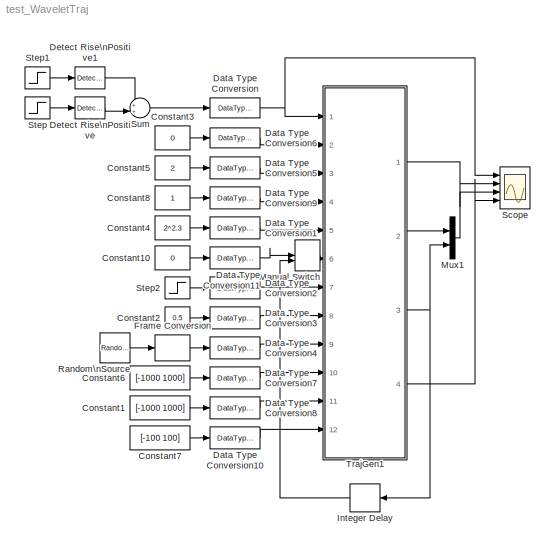
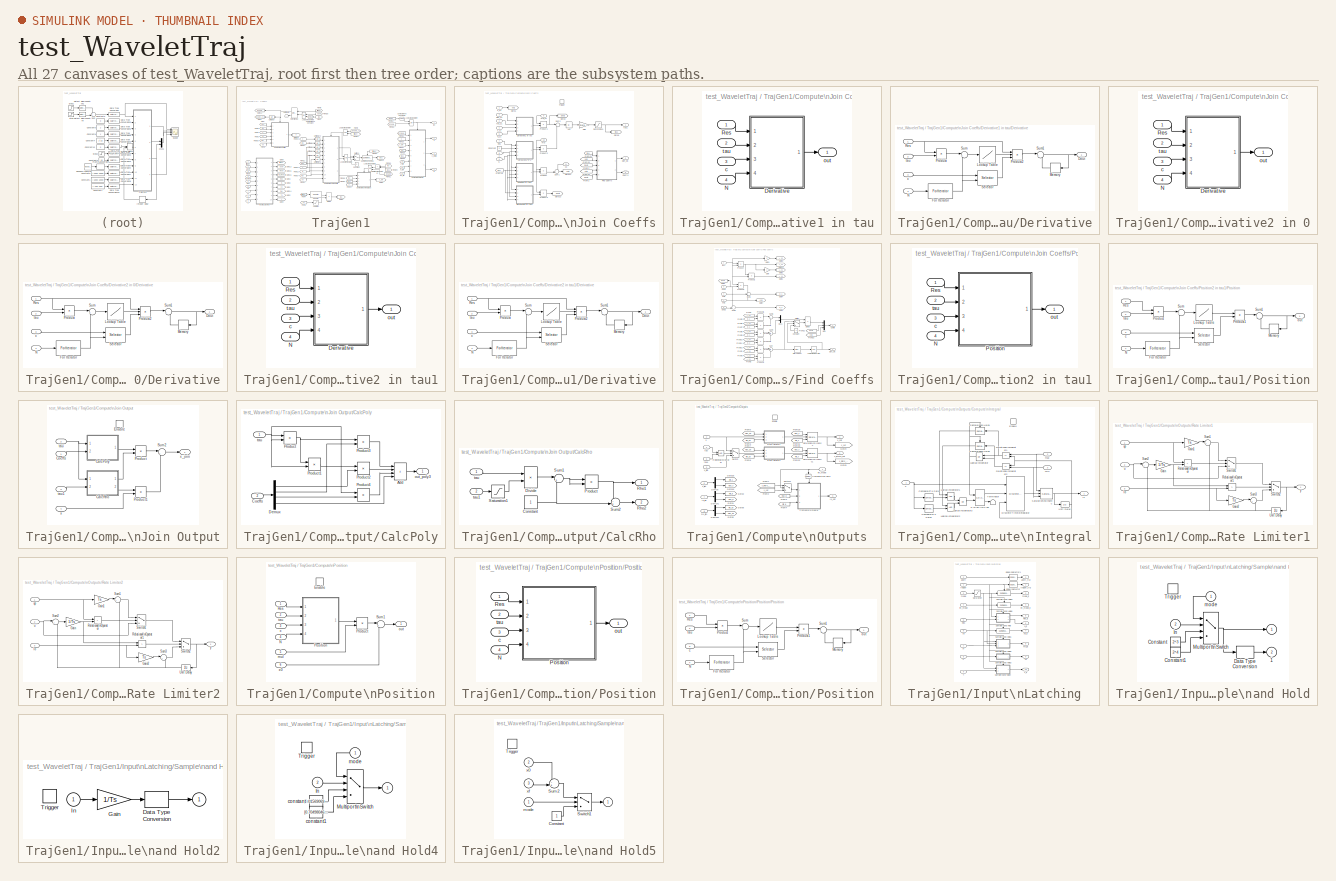
[diagram: thumbnail index - all 27 canvases of the model, root first then tree order]
MODEL test_WaveletTraj
KIND model
CONFIG PreLoadFcn = load param
BLOCK [Constant] Constant1
  SID = 1
  Value = [-1000 1000]
BLOCK [Constant] Constant10
  SID = 2
  Value = 0
BLOCK [Constant] Constant2
  SID = 3
  Value = 0.5
BLOCK [Constant] Constant3
  SID = 4
  Value = 0
BLOCK [Constant] Constant4
  SID = 5
  Value = 2^2.3
BLOCK [Constant] Constant5
  SID = 6
  Value = 2
BLOCK [Constant] Constant6
  SID = 7
  Value = [-1000 1000]
BLOCK [Constant] Constant7
  SID = 8
  Value = [-100 100]
BLOCK [Constant] Constant8
  SID = 9
BLOCK [DataTypeConversion] Data Type Conversion
  OutDataTypeStr = boolean
  RndMeth = Nearest
  SID = 10
BLOCK [DataTypeConversion] Data Type Conversion1
  OutDataTypeStr = fixdt(0,w,f)
  RndMeth = Nearest
  SID = 11
BLOCK [DataTypeConversion] Data Type Conversion10
  OutDataTypeStr = fixdt(1,w,f)
  RndMeth = Nearest
  SID = 12
BLOCK [DataTypeConversion] Data Type Conversion11
  OutDataTypeStr = fixdt(1,w,f)
  RndMeth = Nearest
  SID = 13
BLOCK [DataTypeConversion] Data Type Conversion2
  OutDataTypeStr = fixdt(1,w,f)
  RndMeth = Nearest
  SID = 14
BLOCK [DataTypeConversion] Data Type Conversion3
  OutDataTypeStr = fixdt(0,16,7)
  RndMeth = Nearest
  SID = 15
BLOCK [DataTypeConversion] Data Type Conversion4
  OutDataTypeStr = fixdt(1,16,7)
  RndMeth = Nearest
  SID = 16
BLOCK [DataTypeConversion] Data Type Conversion5
  OutDataTypeStr = uint8
  RndMeth = Nearest
  SID = 17
BLOCK [DataTypeConversion] Data Type Conversion6
  OutDataTypeStr = boolean
  RndMeth = Nearest
  SID = 18
BLOCK [DataTypeConversion] Data Type Conversion7
  OutDataTypeStr = fixdt(1,w,f)
  RndMeth = Nearest
  SID = 19
BLOCK [DataTypeConversion] Data Type Conversion8
  OutDataTypeStr = fixdt(1,w,f)
  RndMeth = Nearest
  SID = 20
BLOCK [DataTypeConversion] Data Type Conversion9
  OutDataTypeStr = uint8
  RndMeth = Nearest
  SID = 21
BLOCK [Reference] Detect Rise\nPositive  REF=simulink/Logic and Bit\nOperations/Detect Rise\nPositive
  InputProcessing = Elements as channels (sample based)
  OutDataTypeStr = uint8
  Ports = [1, 1]
  RTWMemSecDataConstants = Inherit from model
  RTWMemSecDataInternal = Inherit from model
  RTWMemSecDataParameters = Inherit from model
  RTWMemSecFuncExecute = Inherit from model
  RTWMemSecFuncInitTerm = Inherit from model
  SID = 22
  SourceBlock = simulink/Logic and Bit\nOperations/Detect Rise\nPositive
  SourceProductBaseCode = SL
  SourceType = Detect Rise Positive
  vinit = 0
BLOCK [Reference] Detect Rise\nPositive1  REF=simulink/Logic and Bit\nOperations/Detect Rise\nPositive
  InputProcessing = Elements as channels (sample based)
  OutDataTypeStr = uint8
  Ports = [1, 1]
  RTWMemSecDataConstants = Inherit from model
  RTWMemSecDataInternal = Inherit from model
  RTWMemSecDataParameters = Inherit from model
  RTWMemSecFuncExecute = Inherit from model
  RTWMemSecFuncInitTerm = Inherit from model
  SID = 23
  SourceBlock = simulink/Logic and Bit\nOperations/Detect Rise\nPositive
  SourceProductBaseCode = SL
  SourceType = Detect Rise Positive
  vinit = 0
BLOCK [FrameConversion] Frame Conversion
  OutFrame = Sample-based
  Ports = [1, 1]
  SID = 24
BLOCK [Delay] Integer Delay
  DelayLength = 1
  InputPortMap = u0
  Ports = [1, 1]
  SID = 25
BLOCK [ManualSwitch] Manual Switch
  CurrentSetting = 0
  SID = 26
BLOCK [Mux] Mux1
  DisplayOption = bar
  Inputs = 2
  Ports = [2, 1]
  SID = 27
BLOCK [Reference] Random\nSource  REF=dspsrcs4/Random\nSource
  CltLength = 12
  DataType = Double
  IsInherit = off
  MaxVal = 10
  MeanVal = 0
  MinVal = -10
  MultiThreadCoSim = auto
  NormMethod = Ziggurat
  OutComplex = Real
  OutputFrames = on
  Ports = [0, 1]
  RepMode = Not repeatable
  SID = 28
  SampFrame = c_maxsz
  SampMode = Discrete
  SampTime = Ts/c_maxsz
  SourceBlock = dspsrcs4/Random\nSource
  SourceProductBaseCode = DS
  SourceType = Random Source
  SrcType = Uniform
  UserData = DataTag0
  UserDataPersistent = on
  VarVal = 1
  rawSeed = 1
BLOCK [Scope] Scope
  Floating = off
  NumInputPorts = 4
  Ports = [4]
  SID = 29
  ScopeSpecificationString = Simulink.scopes.TimeScopeBlockCfg('CurrentConfiguration', extmgr.ConfigurationSet(extmgr.Configuration('Core','General UI',true),extmgr.Configuration('Core','Source UI',true),extmgr.Configuration('Sources','WiredSimulink',true,'DataLoggingSaveFormat','StructureWithTime','DataLoggingDecimation','1','DataLoggingDecimateData',true),extmgr.Configuration('Visuals','Time Domain',true,'SerializedDisplays...<+3751ch>
BLOCK [Step] Step
  SID = 30
  SampleTime = Ts
BLOCK [Step] Step1
  SID = 31
  SampleTime = Ts
  Time = 2
BLOCK [Step] Step2
  After = 20
  Before = 10
  SID = 32
  SampleTime = Ts
  Time = 1.5
BLOCK [Sum] Sum
  Inputs = ++|
  Ports = [2, 1]
  SID = 33
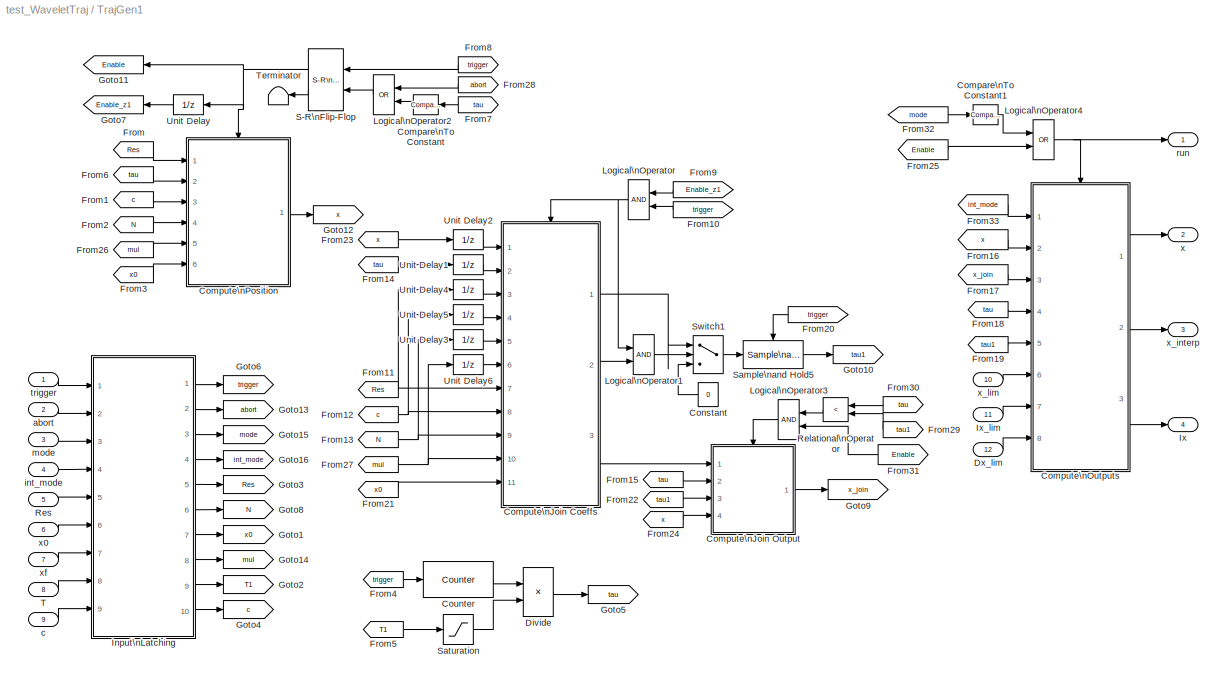
BLOCK [SubSystem] TrajGen1
  Ports = [12, 4]
  RTWFcnName = WaveletTrajectory
  RTWFcnNameOpts = User specified
  RTWSystemCode = Reusable function
  RequestExecContextInheritance = off
  SID = 34
  TreatAsAtomicUnit = on
BLOCK [Reference] TrajGen1/Compare\nTo Constant  REF=simulink/Logic and Bit\nOperations/Compare\nTo Constant
  OutDataTypeStr = boolean
  Ports = [1, 1]
  RTWMemSecDataConstants = Inherit from model
  RTWMemSecDataInternal = Inherit from model
  RTWMemSecDataParameters = Inherit from model
  RTWMemSecFuncExecute = Inherit from model
  RTWMemSecFuncInitTerm = Inherit from model
  SID = 47
  SourceBlock = simulink/Logic and Bit\nOperations/Compare\nTo Constant
  SourceProductBaseCode = SL
  SourceType = Compare To Constant
  ZeroCross = off
  const = 1
  relop = >
BLOCK [Reference] TrajGen1/Compare\nTo Constant1  REF=simulink/Logic and Bit\nOperations/Compare\nTo Constant
  OutDataTypeStr = boolean
  Ports = [1, 1]
  RTWMemSecDataConstants = Inherit from model
  RTWMemSecDataInternal = Inherit from model
  RTWMemSecDataParameters = Inherit from model
  RTWMemSecFuncExecute = Inherit from model
  RTWMemSecFuncInitTerm = Inherit from model
  SID = 48
  SourceBlock = simulink/Logic and Bit\nOperations/Compare\nTo Constant
  SourceProductBaseCode = SL
  SourceType = Compare To Constant
  ZeroCross = off
  const = 2
  relop = ==
BLOCK [SubSystem] TrajGen1/Compute\nJoin Coeffs
  Ports = [11, 3, 0, 1]
  RTWFcnName = Trajectory_ComputeJoinCoeffs
  RTWFcnNameOpts = User specified
  RTWSystemCode = Reusable function
  RequestExecContextInheritance = off
  SID = 49
BLOCK [Abs] TrajGen1/Compute\nJoin Coeffs/Abs
  RndMeth = Nearest
  SID = 62
BLOCK [Outport] TrajGen1/Compute\nJoin Coeffs/Coeffs
  Port = 3
  SID = 218
BLOCK [Constant] TrajGen1/Compute\nJoin Coeffs/Constant
  OutDataTypeStr = fixdt(1,w,f)
  SID = 63
  Value = 0
BLOCK [Outport] TrajGen1/Compute\nJoin Coeffs/DET_OK
  Port = 2
  SID = 217
BLOCK [SubSystem] TrajGen1/Compute\nJoin Coeffs/Derivative1 in tau
  Ports = [4, 1]
  RTWFcnName = Trajectory_Derivative
  RTWFcnNameOpts = User specified
  RTWSystemCode = Reusable function
  RequestExecContextInheritance = off
  SID = 64
  TreatAsAtomicUnit = on
BLOCK [SubSystem] TrajGen1/Compute\nJoin Coeffs/Derivative1 in tau/Derivative
  Ports = [4, 1]
  RTWFcnName = Trajectory_Derivative
  RequestExecContextInheritance = off
  SID = 69
BLOCK [Outport] TrajGen1/Compute\nJoin Coeffs/Derivative1 in tau/Derivative/Dout
  InitialOutput = 0
  PortDimensions = 1
  SID = 82
  SamplingMode = Sample based
BLOCK [ForIterator] TrajGen1/Compute\nJoin Coeffs/Derivative1 in tau/Derivative/For Iterator
  IndexMode = Zero-based
  IterationSource = external
  IterationVariableDataType = int8
  Ports = [1, 1]
  ResetStates = reset
  SID = 74
BLOCK [Lookup] TrajGen1/Compute\nJoin Coeffs/Derivative1 in tau/Derivative/Lookup Table
  InputValues = tval_fi
  LookUpMeth = Interpolation-Use End Values
  RndMeth = Nearest
  SID = 75
  Table = Dphival_fi
BLOCK [Memory] TrajGen1/Compute\nJoin Coeffs/Derivative1 in tau/Derivative/Memory
  InheritSampleTime = on
  SID = 76
BLOCK [Inport] TrajGen1/Compute\nJoin Coeffs/Derivative1 in tau/Derivative/N
  Port = 4
  PortDimensions = 1
  SID = 73
  SamplingMode = Sample based
BLOCK [Product] TrajGen1/Compute\nJoin Coeffs/Derivative1 in tau/Derivative/Product
  OutDataTypeStr = fixdt(1,w,f)
  Ports = [2, 1]
  RndMeth = Nearest
  SID = 77
  SaturateOnIntegerOverflow = on
BLOCK [Product] TrajGen1/Compute\nJoin Coeffs/Derivative1 in tau/Derivative/Product2
  Inputs = 3
  OutDataTypeStr = fixdt(1,w,f)
  Ports = [3, 1]
  RndMeth = Nearest
  SID = 78
  SaturateOnIntegerOverflow = on
BLOCK [Inport] TrajGen1/Compute\nJoin Coeffs/Derivative1 in tau/Derivative/Res
  PortDimensions = 1
  SID = 70
  SamplingMode = Sample based
BLOCK [Selector] TrajGen1/Compute\nJoin Coeffs/Derivative1 in tau/Derivative/Selector
  IndexMode = Zero-based
  IndexOptions = Index vector (port)
  Indices = [1 3]
  InputPortWidth = c_maxsz
  OutputSizes = 1
  Ports = [2, 1]
  SID = 79
BLOCK [Sum] TrajGen1/Compute\nJoin Coeffs/Derivative1 in tau/Derivative/Sum
  Inputs = |+-
  OutDataTypeStr = fixdt(1,w,f)
  Ports = [2, 1]
  RndMeth = Nearest
  SID = 80
  SaturateOnIntegerOverflow = on
BLOCK [Sum] TrajGen1/Compute\nJoin Coeffs/Derivative1 in tau/Derivative/Sum1
  Inputs = |++
  OutDataTypeStr = fixdt(1,w,f)
  Ports = [2, 1]
  RndMeth = Nearest
  SID = 81
  SaturateOnIntegerOverflow = on
BLOCK [Inport] TrajGen1/Compute\nJoin Coeffs/Derivative1 in tau/Derivative/c
  Port = 3
  PortDimensions = c_maxsz
  SID = 72
  SamplingMode = Sample based
BLOCK [Inport] TrajGen1/Compute\nJoin Coeffs/Derivative1 in tau/Derivative/tau
  Port = 2
  PortDimensions = 1
  SID = 71
  SamplingMode = Sample based
BLOCK [Inport] TrajGen1/Compute\nJoin Coeffs/Derivative1 in tau/N
  Port = 4
  SID = 68
BLOCK [Inport] TrajGen1/Compute\nJoin Coeffs/Derivative1 in tau/Res
  SID = 65
BLOCK [Inport] TrajGen1/Compute\nJoin Coeffs/Derivative1 in tau/c
  Port = 3
  SID = 67
BLOCK [Outport] TrajGen1/Compute\nJoin Coeffs/Derivative1 in tau/out
  SID = 83
BLOCK [Inport] TrajGen1/Compute\nJoin Coeffs/Derivative1 in tau/tau
  Port = 2
  SID = 66
BLOCK [SubSystem] TrajGen1/Compute\nJoin Coeffs/Derivative2 in 0
  Ports = [4, 1]
  RTWFcnName = Trajectory_Derivative
  RTWFcnNameOpts = User specified
  RTWSystemCode = Reusable function
  RequestExecContextInheritance = off
  SID = 84
  TreatAsAtomicUnit = on
BLOCK [SubSystem] TrajGen1/Compute\nJoin Coeffs/Derivative2 in 0/Derivative
  Ports = [4, 1]
  RTWFcnName = Trajectory_Derivative
  RequestExecContextInheritance = off
  SID = 89
BLOCK [Outport] TrajGen1/Compute\nJoin Coeffs/Derivative2 in 0/Derivative/Dout
  InitialOutput = 0
  PortDimensions = 1
  SID = 102
  SamplingMode = Sample based
BLOCK [ForIterator] TrajGen1/Compute\nJoin Coeffs/Derivative2 in 0/Derivative/For Iterator
  IndexMode = Zero-based
  IterationSource = external
  IterationVariableDataType = int8
  Ports = [1, 1]
  ResetStates = reset
  SID = 94
BLOCK [Lookup] TrajGen1/Compute\nJoin Coeffs/Derivative2 in 0/Derivative/Lookup Table
  InputValues = tval_fi
  LookUpMeth = Interpolation-Use End Values
  RndMeth = Nearest
  SID = 95
  Table = Dphival_fi
BLOCK [Memory] TrajGen1/Compute\nJoin Coeffs/Derivative2 in 0/Derivative/Memory
  InheritSampleTime = on
  SID = 96
BLOCK [Inport] TrajGen1/Compute\nJoin Coeffs/Derivative2 in 0/Derivative/N
  Port = 4
  PortDimensions = 1
  SID = 93
  SamplingMode = Sample based
BLOCK [Product] TrajGen1/Compute\nJoin Coeffs/Derivative2 in 0/Derivative/Product
  OutDataTypeStr = fixdt(1,w,f)
  Ports = [2, 1]
  RndMeth = Nearest
  SID = 97
  SaturateOnIntegerOverflow = on
BLOCK [Product] TrajGen1/Compute\nJoin Coeffs/Derivative2 in 0/Derivative/Product2
  Inputs = 3
  OutDataTypeStr = fixdt(1,w,f)
  Ports = [3, 1]
  RndMeth = Nearest
  SID = 98
  SaturateOnIntegerOverflow = on
BLOCK [Inport] TrajGen1/Compute\nJoin Coeffs/Derivative2 in 0/Derivative/Res
  PortDimensions = 1
  SID = 90
  SamplingMode = Sample based
BLOCK [Selector] TrajGen1/Compute\nJoin Coeffs/Derivative2 in 0/Derivative/Selector
  IndexMode = Zero-based
  IndexOptions = Index vector (port)
  Indices = [1 3]
  InputPortWidth = c_maxsz
  OutputSizes = 1
  Ports = [2, 1]
  SID = 99
BLOCK [Sum] TrajGen1/Compute\nJoin Coeffs/Derivative2 in 0/Derivative/Sum
  Inputs = |+-
  OutDataTypeStr = fixdt(1,w,f)
  Ports = [2, 1]
  RndMeth = Nearest
  SID = 100
  SaturateOnIntegerOverflow = on
BLOCK [Sum] TrajGen1/Compute\nJoin Coeffs/Derivative2 in 0/Derivative/Sum1
  Inputs = |++
  OutDataTypeStr = fixdt(1,w,f)
  Ports = [2, 1]
  RndMeth = Nearest
  SID = 101
  SaturateOnIntegerOverflow = on
BLOCK [Inport] TrajGen1/Compute\nJoin Coeffs/Derivative2 in 0/Derivative/c
  Port = 3
  PortDimensions = c_maxsz
  SID = 92
  SamplingMode = Sample based
BLOCK [Inport] TrajGen1/Compute\nJoin Coeffs/Derivative2 in 0/Derivative/tau
  Port = 2
  PortDimensions = 1
  SID = 91
  SamplingMode = Sample based
BLOCK [Inport] TrajGen1/Compute\nJoin Coeffs/Derivative2 in 0/N
  Port = 4
  SID = 88
BLOCK [Inport] TrajGen1/Compute\nJoin Coeffs/Derivative2 in 0/Res
  SID = 85
BLOCK [Inport] TrajGen1/Compute\nJoin Coeffs/Derivative2 in 0/c
  Port = 3
  SID = 87
BLOCK [Outport] TrajGen1/Compute\nJoin Coeffs/Derivative2 in 0/out
  SID = 103
BLOCK [Inport] TrajGen1/Compute\nJoin Coeffs/Derivative2 in 0/tau
  Port = 2
  SID = 86
BLOCK [SubSystem] TrajGen1/Compute\nJoin Coeffs/Derivative2 in tau1
  Ports = [4, 1]
  RTWFcnName = Trajectory_Derivative
  RTWFcnNameOpts = User specified
  RTWSystemCode = Reusable function
  RequestExecContextInheritance = off
  SID = 104
  TreatAsAtomicUnit = on
BLOCK [SubSystem] TrajGen1/Compute\nJoin Coeffs/Derivative2 in tau1/Derivative
  Ports = [4, 1]
  RTWFcnName = Trajectory_Derivative
  RequestExecContextInheritance = off
  SID = 109
BLOCK [Outport] TrajGen1/Compute\nJoin Coeffs/Derivative2 in tau1/Derivative/Dout
  InitialOutput = 0
  PortDimensions = 1
  SID = 122
  SamplingMode = Sample based
BLOCK [ForIterator] TrajGen1/Compute\nJoin Coeffs/Derivative2 in tau1/Derivative/For Iterator
  IndexMode = Zero-based
  IterationSource = external
  IterationVariableDataType = int8
  Ports = [1, 1]
  ResetStates = reset
  SID = 114
BLOCK [Lookup] TrajGen1/Compute\nJoin Coeffs/Derivative2 in tau1/Derivative/Lookup Table
  InputValues = tval_fi
  LookUpMeth = Interpolation-Use End Values
  RndMeth = Nearest
  SID = 115
  Table = Dphival_fi
BLOCK [Memory] TrajGen1/Compute\nJoin Coeffs/Derivative2 in tau1/Derivative/Memory
  InheritSampleTime = on
  SID = 116
BLOCK [Inport] TrajGen1/Compute\nJoin Coeffs/Derivative2 in tau1/Derivative/N
  Port = 4
  PortDimensions = 1
  SID = 113
  SamplingMode = Sample based
BLOCK [Product] TrajGen1/Compute\nJoin Coeffs/Derivative2 in tau1/Derivative/Product
  OutDataTypeStr = fixdt(1,w,f)
  Ports = [2, 1]
  RndMeth = Nearest
  SID = 117
  SaturateOnIntegerOverflow = on
BLOCK [Product] TrajGen1/Compute\nJoin Coeffs/Derivative2 in tau1/Derivative/Product2
  Inputs = 3
  OutDataTypeStr = fixdt(1,w,f)
  Ports = [3, 1]
  RndMeth = Nearest
  SID = 118
  SaturateOnIntegerOverflow = on
BLOCK [Inport] TrajGen1/Compute\nJoin Coeffs/Derivative2 in tau1/Derivative/Res
  PortDimensions = 1
  SID = 110
  SamplingMode = Sample based
BLOCK [Selector] TrajGen1/Compute\nJoin Coeffs/Derivative2 in tau1/Derivative/Selector
  IndexMode = Zero-based
  IndexOptions = Index vector (port)
  Indices = [1 3]
  InputPortWidth = c_maxsz
  OutputSizes = 1
  Ports = [2, 1]
  SID = 119
BLOCK [Sum] TrajGen1/Compute\nJoin Coeffs/Derivative2 in tau1/Derivative/Sum
  Inputs = |+-
  OutDataTypeStr = fixdt(1,w,f)
  Ports = [2, 1]
  RndMeth = Nearest
  SID = 120
  SaturateOnIntegerOverflow = on
BLOCK [Sum] TrajGen1/Compute\nJoin Coeffs/Derivative2 in tau1/Derivative/Sum1
  Inputs = |++
  OutDataTypeStr = fixdt(1,w,f)
  Ports = [2, 1]
  RndMeth = Nearest
  SID = 121
  SaturateOnIntegerOverflow = on
BLOCK [Inport] TrajGen1/Compute\nJoin Coeffs/Derivative2 in tau1/Derivative/c
  Port = 3
  PortDimensions = c_maxsz
  SID = 112
  SamplingMode = Sample based
BLOCK [Inport] TrajGen1/Compute\nJoin Coeffs/Derivative2 in tau1/Derivative/tau
  Port = 2
  PortDimensions = 1
  SID = 111
  SamplingMode = Sample based
BLOCK [Inport] TrajGen1/Compute\nJoin Coeffs/Derivative2 in tau1/N
  Port = 4
  SID = 108
BLOCK [Inport] TrajGen1/Compute\nJoin Coeffs/Derivative2 in tau1/Res
  SID = 105
BLOCK [Inport] TrajGen1/Compute\nJoin Coeffs/Derivative2 in tau1/c
  Port = 3
  SID = 107
BLOCK [Outport] TrajGen1/Compute\nJoin Coeffs/Derivative2 in tau1/out
  SID = 123
BLOCK [Inport] TrajGen1/Compute\nJoin Coeffs/Derivative2 in tau1/tau
  Port = 2
  SID = 106
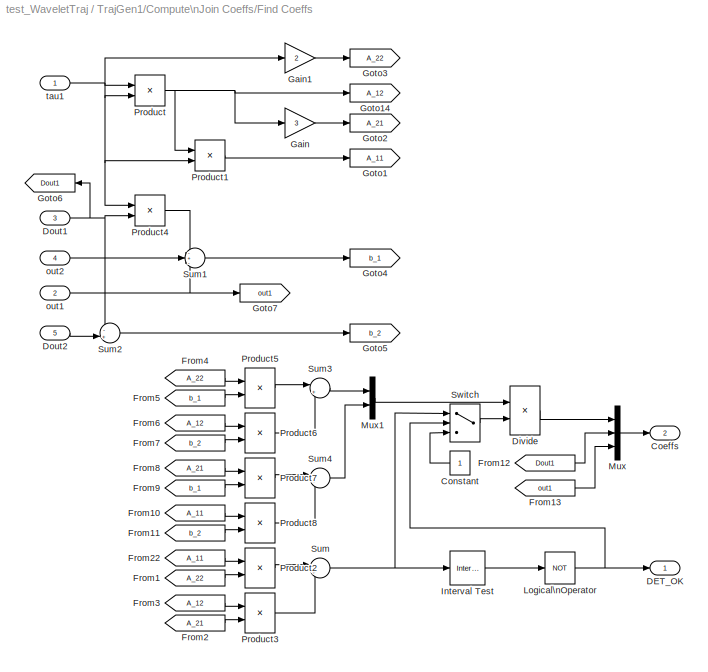
BLOCK [SubSystem] TrajGen1/Compute\nJoin Coeffs/Find Coeffs
  Ports = [5, 2]
  RTWFcnName = Trajectory_FindCoeffs
  RTWFcnNameOpts = User specified
  RTWSystemCode = Reusable function
  RequestExecContextInheritance = off
  SID = 124
  TreatAsAtomicUnit = on
BLOCK [Outport] TrajGen1/Compute\nJoin Coeffs/Find Coeffs/Coeffs
  Port = 2
  SID = 176
BLOCK [Constant] TrajGen1/Compute\nJoin Coeffs/Find Coeffs/Constant
  OutDataTypeStr = fixdt(1,w,f)
  SID = 130
BLOCK [Outport] TrajGen1/Compute\nJoin Coeffs/Find Coeffs/DET_OK
  SID = 175
BLOCK [Product] TrajGen1/Compute\nJoin Coeffs/Find Coeffs/Divide
  Inputs = */
  OutDataTypeStr = fixdt(1,w,f)
  Ports = [2, 1]
  RndMeth = Nearest
  SID = 131
  SaturateOnIntegerOverflow = on
BLOCK [Inport] TrajGen1/Compute\nJoin Coeffs/Find Coeffs/Dout1
  Port = 3
  SID = 127
BLOCK [Inport] TrajGen1/Compute\nJoin Coeffs/Find Coeffs/Dout2
  Port = 5
  SID = 129
BLOCK [From] TrajGen1/Compute\nJoin Coeffs/Find Coeffs/From1
  GotoTag = A_22
  SID = 132
BLOCK [From] TrajGen1/Compute\nJoin Coeffs/Find Coeffs/From10
  GotoTag = A_11
  SID = 133
BLOCK [From] TrajGen1/Compute\nJoin Coeffs/Find Coeffs/From11
  GotoTag = b_2
  SID = 134
BLOCK [From] TrajGen1/Compute\nJoin Coeffs/Find Coeffs/From12
  GotoTag = Dout1
  SID = 135
BLOCK [From] TrajGen1/Compute\nJoin Coeffs/Find Coeffs/From13
  GotoTag = out1
  SID = 136
BLOCK [From] TrajGen1/Compute\nJoin Coeffs/Find Coeffs/From2
  GotoTag = A_21
  SID = 137
BLOCK [From] TrajGen1/Compute\nJoin Coeffs/Find Coeffs/From22
  GotoTag = A_11
  SID = 138
BLOCK [From] TrajGen1/Compute\nJoin Coeffs/Find Coeffs/From3
  GotoTag = A_12
  SID = 139
BLOCK [From] TrajGen1/Compute\nJoin Coeffs/Find Coeffs/From4
  GotoTag = A_22
  SID = 140
BLOCK [From] TrajGen1/Compute\nJoin Coeffs/Find Coeffs/From5
  GotoTag = b_1
  SID = 141
BLOCK [From] TrajGen1/Compute\nJoin Coeffs/Find Coeffs/From6
  GotoTag = A_12
  SID = 142
BLOCK [From] TrajGen1/Compute\nJoin Coeffs/Find Coeffs/From7
  GotoTag = b_2
  SID = 143
BLOCK [From] TrajGen1/Compute\nJoin Coeffs/Find Coeffs/From8
  GotoTag = A_21
  SID = 144
BLOCK [From] TrajGen1/Compute\nJoin Coeffs/Find Coeffs/From9
  GotoTag = b_1
  SID = 145
BLOCK [Gain] TrajGen1/Compute\nJoin Coeffs/Find Coeffs/Gain
  Gain = 3
  OutDataTypeStr = Inherit: Same as input
  ParamDataTypeStr = Inherit: Same as input
  RndMeth = Nearest
  SID = 146
  SaturateOnIntegerOverflow = on
BLOCK [Gain] TrajGen1/Compute\nJoin Coeffs/Find Coeffs/Gain1
  Gain = 2
  OutDataTypeStr = Inherit: Same as input
  ParamDataTypeStr = Inherit: Same as input
  RndMeth = Nearest
  SID = 147
  SaturateOnIntegerOverflow = on
BLOCK [Goto] TrajGen1/Compute\nJoin Coeffs/Find Coeffs/Goto1
  GotoTag = A_11
  SID = 148
BLOCK [Goto] TrajGen1/Compute\nJoin Coeffs/Find Coeffs/Goto14
  GotoTag = A_12
  SID = 149
BLOCK [Goto] TrajGen1/Compute\nJoin Coeffs/Find Coeffs/Goto2
  GotoTag = A_21
  SID = 150
BLOCK [Goto] TrajGen1/Compute\nJoin Coeffs/Find Coeffs/Goto3
  GotoTag = A_22
  SID = 151
BLOCK [Goto] TrajGen1/Compute\nJoin Coeffs/Find Coeffs/Goto4
  GotoTag = b_1
  SID = 152
BLOCK [Goto] TrajGen1/Compute\nJoin Coeffs/Find Coeffs/Goto5
  GotoTag = b_2
  SID = 153
BLOCK [Goto] TrajGen1/Compute\nJoin Coeffs/Find Coeffs/Goto6
  GotoTag = Dout1
  SID = 154
BLOCK [Goto] TrajGen1/Compute\nJoin Coeffs/Find Coeffs/Goto7
  GotoTag = out1
  SID = 155
BLOCK [Reference] TrajGen1/Compute\nJoin Coeffs/Find Coeffs/Interval Test  REF=simulink/Logic and Bit\nOperations/Interval Test
  IntervalClosedLeft = on
  IntervalClosedRight = on
  OutDataTypeStr = boolean
  Ports = [1, 1]
  RTWMemSecDataConstants = Inherit from model
  RTWMemSecDataInternal = Inherit from model
  RTWMemSecDataParameters = Inherit from model
  RTWMemSecFuncExecute = Inherit from model
  RTWMemSecFuncInitTerm = Inherit from model
  SID = 156
  SourceBlock = simulink/Logic and Bit\nOperations/Interval Test
  SourceProductBaseCode = SL
  SourceType = Interval Test
  lowlimit = -2^-f
  uplimit = 2^-f
BLOCK [Logic] TrajGen1/Compute\nJoin Coeffs/Find Coeffs/Logical\nOperator
  AllPortsSameDT = off
  IconShape = distinctive
  Operator = NOT
  OutDataTypeStr = boolean
  Ports = [1, 1]
  SID = 157
BLOCK [Mux] TrajGen1/Compute\nJoin Coeffs/Find Coeffs/Mux
  DisplayOption = bar
  Inputs = 3
  Ports = [3, 1]
  SID = 158
BLOCK [Mux] TrajGen1/Compute\nJoin Coeffs/Find Coeffs/Mux1
  DisplayOption = bar
  Inputs = 2
  Ports = [2, 1]
  SID = 159
BLOCK [Product] TrajGen1/Compute\nJoin Coeffs/Find Coeffs/Product
  OutDataTypeStr = fixdt(1,w,f)
  Ports = [2, 1]
  RndMeth = Nearest
  SID = 160
  SaturateOnIntegerOverflow = on
BLOCK [Product] TrajGen1/Compute\nJoin Coeffs/Find Coeffs/Product1
  OutDataTypeStr = fixdt(1,w,f)
  Ports = [2, 1]
  RndMeth = Nearest
  SID = 161
  SaturateOnIntegerOverflow = on
BLOCK [Product] TrajGen1/Compute\nJoin Coeffs/Find Coeffs/Product2
  OutDataTypeStr = fixdt(1,w,f)
  Ports = [2, 1]
  RndMeth = Nearest
  SID = 162
  SaturateOnIntegerOverflow = on
BLOCK [Product] TrajGen1/Compute\nJoin Coeffs/Find Coeffs/Product3
  OutDataTypeStr = fixdt(1,w,f)
  Ports = [2, 1]
  RndMeth = Nearest
  SID = 163
  SaturateOnIntegerOverflow = on
BLOCK [Product] TrajGen1/Compute\nJoin Coeffs/Find Coeffs/Product4
  OutDataTypeStr = fixdt(1,w,f)
  Ports = [2, 1]
  RndMeth = Nearest
  SID = 164
  SaturateOnIntegerOverflow = on
BLOCK [Product] TrajGen1/Compute\nJoin Coeffs/Find Coeffs/Product5
  OutDataTypeStr = fixdt(1,w,f)
  Ports = [2, 1]
  RndMeth = Nearest
  SID = 165
  SaturateOnIntegerOverflow = on
BLOCK [Product] TrajGen1/Compute\nJoin Coeffs/Find Coeffs/Product6
  OutDataTypeStr = fixdt(1,w,f)
  Ports = [2, 1]
  RndMeth = Nearest
  SID = 166
  SaturateOnIntegerOverflow = on
BLOCK [Product] TrajGen1/Compute\nJoin Coeffs/Find Coeffs/Product7
  OutDataTypeStr = fixdt(1,w,f)
  Ports = [2, 1]
  RndMeth = Nearest
  SID = 167
  SaturateOnIntegerOverflow = on
BLOCK [Product] TrajGen1/Compute\nJoin Coeffs/Find Coeffs/Product8
  OutDataTypeStr = fixdt(1,w,f)
  Ports = [2, 1]
  RndMeth = Nearest
  SID = 168
  SaturateOnIntegerOverflow = on
BLOCK [Sum] TrajGen1/Compute\nJoin Coeffs/Find Coeffs/Sum
  Inputs = |+-
  OutDataTypeStr = fixdt(1,w,f)
  Ports = [2, 1]
  RndMeth = Nearest
  SID = 169
  SaturateOnIntegerOverflow = on
BLOCK [Sum] TrajGen1/Compute\nJoin Coeffs/Find Coeffs/Sum1
  Inputs = -+-
  OutDataTypeStr = fixdt(1,w,f)
  Ports = [3, 1]
  RndMeth = Nearest
  SID = 170
  SaturateOnIntegerOverflow = on
BLOCK [Sum] TrajGen1/Compute\nJoin Coeffs/Find Coeffs/Sum2
  Inputs = -+|
  OutDataTypeStr = fixdt(1,w,f)
  Ports = [2, 1]
  RndMeth = Nearest
  SID = 171
  SaturateOnIntegerOverflow = on
BLOCK [Sum] TrajGen1/Compute\nJoin Coeffs/Find Coeffs/Sum3
  Inputs = |+-
  OutDataTypeStr = fixdt(1,w,f)
  Ports = [2, 1]
  RndMeth = Nearest
  SID = 172
  SaturateOnIntegerOverflow = on
BLOCK [Sum] TrajGen1/Compute\nJoin Coeffs/Find Coeffs/Sum4
  Inputs = |-+
  OutDataTypeStr = fixdt(1,w,f)
  Ports = [2, 1]
  RndMeth = Nearest
  SID = 173
  SaturateOnIntegerOverflow = on
BLOCK [Switch] TrajGen1/Compute\nJoin Coeffs/Find Coeffs/Switch
  InputSameDT = off
  OutDataTypeStr = fixdt(1,w,f)
  RndMeth = Nearest
  SID = 174
  Threshold = 0.5
BLOCK [Inport] TrajGen1/Compute\nJoin Coeffs/Find Coeffs/out1
  Port = 2
  SID = 126
BLOCK [Inport] TrajGen1/Compute\nJoin Coeffs/Find Coeffs/out2
  Port = 4
  SID = 128
BLOCK [Inport] TrajGen1/Compute\nJoin Coeffs/Find Coeffs/tau1
  SID = 125
BLOCK [From] TrajGen1/Compute\nJoin Coeffs/From1
  GotoTag = Dout1
  SID = 177
BLOCK [From] TrajGen1/Compute\nJoin Coeffs/From18
  GotoTag = tau1
  SID = 178
BLOCK [From] TrajGen1/Compute\nJoin Coeffs/From2
  GotoTag = Dout2
  SID = 179
BLOCK [From] TrajGen1/Compute\nJoin Coeffs/From20
  GotoTag = out1
  SID = 180
BLOCK [From] TrajGen1/Compute\nJoin Coeffs/From21
  GotoTag = tau1
  SID = 181
BLOCK [From] TrajGen1/Compute\nJoin Coeffs/From22
  GotoTag = out2
  SID = 182
BLOCK [Gain] TrajGen1/Compute\nJoin Coeffs/Gain
  Gain = interp_gain
  OutDataTypeStr = Inherit: Same as input
  ParamDataTypeStr = fixdt(1,w,f)
  RndMeth = Nearest
  SID = 183
  SaturateOnIntegerOverflow = on
BLOCK [Goto] TrajGen1/Compute\nJoin Coeffs/Goto1
  GotoTag = out1
  SID = 184
BLOCK [Goto] TrajGen1/Compute\nJoin Coeffs/Goto13
  GotoTag = Dout2
  SID = 185
BLOCK [Goto] TrajGen1/Compute\nJoin Coeffs/Goto14
  GotoTag = out2
  SID = 186
BLOCK [Goto] TrajGen1/Compute\nJoin Coeffs/Goto2
  GotoTag = Dout1
  SID = 187
BLOCK [Goto] TrajGen1/Compute\nJoin Coeffs/Goto9
  GotoTag = tau1
  SID = 188
BLOCK [Inport] TrajGen1/Compute\nJoin Coeffs/N
  Port = 9
  SID = 58
BLOCK [Inport] TrajGen1/Compute\nJoin Coeffs/N_z1
  Port = 5
  SID = 54
BLOCK [SubSystem] TrajGen1/Compute\nJoin Coeffs/Position2 in tau1
  Ports = [4, 1]
  RTWFcnName = Trajectory_Position
  RTWFcnNameOpts = User specified
  RTWSystemCode = Reusable function
  RequestExecContextInheritance = off
  SID = 189
  TreatAsAtomicUnit = on
BLOCK [Inport] TrajGen1/Compute\nJoin Coeffs/Position2 in tau1/N
  Port = 4
  SID = 193
BLOCK [SubSystem] TrajGen1/Compute\nJoin Coeffs/Position2 in tau1/Position
  Ports = [4, 1]
  RTWFcnName = Trajectory_Position
  RequestExecContextInheritance = off
  SID = 194
BLOCK [ForIterator] TrajGen1/Compute\nJoin Coeffs/Position2 in tau1/Position/For Iterator
  IndexMode = Zero-based
  IterationSource = external
  IterationVariableDataType = int8
  Ports = [1, 1]
  ResetStates = reset
  SID = 199
BLOCK [Lookup] TrajGen1/Compute\nJoin Coeffs/Position2 in tau1/Position/Lookup Table
  InputValues = tval_fi
  LookUpMeth = Interpolation-Use End Values
  RndMeth = Nearest
  SID = 200
  Table = phival_fi
BLOCK [Memory] TrajGen1/Compute\nJoin Coeffs/Position2 in tau1/Position/Memory
  InheritSampleTime = on
  SID = 201
BLOCK [Inport] TrajGen1/Compute\nJoin Coeffs/Position2 in tau1/Position/N
  Port = 4
  PortDimensions = 1
  SID = 198
  SamplingMode = Sample based
BLOCK [Product] TrajGen1/Compute\nJoin Coeffs/Position2 in tau1/Position/Product
  OutDataTypeStr = fixdt(1,w,f)
  Ports = [2, 1]
  RndMeth = Nearest
  SID = 202
  SaturateOnIntegerOverflow = on
BLOCK [Product] TrajGen1/Compute\nJoin Coeffs/Position2 in tau1/Position/Product1
  OutDataTypeStr = fixdt(1,w,f)
  Ports = [2, 1]
  RndMeth = Nearest
  SID = 203
  SaturateOnIntegerOverflow = on
BLOCK [Inport] TrajGen1/Compute\nJoin Coeffs/Position2 in tau1/Position/Res
  PortDimensions = 1
  SID = 195
  SamplingMode = Sample based
BLOCK [Selector] TrajGen1/Compute\nJoin Coeffs/Position2 in tau1/Position/Selector
  IndexMode = Zero-based
  IndexOptions = Index vector (port)
  Indices = [1 3]
  InputPortWidth = c_maxsz
  OutputSizes = 1
  Ports = [2, 1]
  SID = 204
BLOCK [Sum] TrajGen1/Compute\nJoin Coeffs/Position2 in tau1/Position/Sum
  Inputs = |+-
  OutDataTypeStr = fixdt(1,w,f)
  Ports = [2, 1]
  RndMeth = Nearest
  SID = 205
  SaturateOnIntegerOverflow = on
BLOCK [Sum] TrajGen1/Compute\nJoin Coeffs/Position2 in tau1/Position/Sum1
  Inputs = |++
  OutDataTypeStr = fixdt(1,w,f)
  Ports = [2, 1]
  RndMeth = Nearest
  SID = 206
  SaturateOnIntegerOverflow = on
BLOCK [Inport] TrajGen1/Compute\nJoin Coeffs/Position2 in tau1/Position/c
  Port = 3
  PortDimensions = c_maxsz
  SID = 197
  SamplingMode = Sample based
BLOCK [Outport] TrajGen1/Compute\nJoin Coeffs/Position2 in tau1/Position/out
  InitialOutput = 0
  PortDimensions = 1
  SID = 207
  SamplingMode = Sample based
BLOCK [Inport] TrajGen1/Compute\nJoin Coeffs/Position2 in tau1/Position/tau
  Port = 2
  PortDimensions = 1
  SID = 196
  SamplingMode = Sample based
BLOCK [Inport] TrajGen1/Compute\nJoin Coeffs/Position2 in tau1/Res
  SID = 190
BLOCK [Inport] TrajGen1/Compute\nJoin Coeffs/Position2 in tau1/c
  Port = 3
  SID = 192
BLOCK [Outport] TrajGen1/Compute\nJoin Coeffs/Position2 in tau1/out
  SID = 208
BLOCK [Inport] TrajGen1/Compute\nJoin Coeffs/Position2 in tau1/tau
  Port = 2
  SID = 191
BLOCK [Product] TrajGen1/Compute\nJoin Coeffs/Product
  OutDataTypeStr = fixdt(1,w,f)
  Ports = [2, 1]
  RndMeth = Nearest
  SID = 209
  SaturateOnIntegerOverflow = on
BLOCK [Product] TrajGen1/Compute\nJoin Coeffs/Product1
  OutDataTypeStr = fixdt(1,w,f)
  Ports = [2, 1]
  RndMeth = Nearest
  SID = 210
  SaturateOnIntegerOverflow = on
BLOCK [Product] TrajGen1/Compute\nJoin Coeffs/Product2
  OutDataTypeStr = fixdt(1,w,f)
  Ports = [2, 1]
  RndMeth = Nearest
  SID = 211
  SaturateOnIntegerOverflow = on
BLOCK [Product] TrajGen1/Compute\nJoin Coeffs/Product3
  OutDataTypeStr = fixdt(1,w,f)
  Ports = [2, 1]
  RndMeth = Nearest
  SID = 212
  SaturateOnIntegerOverflow = on
BLOCK [Inport] TrajGen1/Compute\nJoin Coeffs/Res
  Port = 7
  SID = 56
BLOCK [Inport] TrajGen1/Compute\nJoin Coeffs/Res_z1
  Port = 3
  SID = 52
BLOCK [Saturate] TrajGen1/Compute\nJoin Coeffs/Saturation1
  LowerLimit = 0
  OutDataTypeStr = fixdt(1,w,f)
  RndMeth = Nearest
  SID = 213
  UpperLimit = interp_uplim
BLOCK [Sum] TrajGen1/Compute\nJoin Coeffs/Sum1
  Inputs = ++|
  OutDataTypeStr = fixdt(1,w,f)
  Ports = [2, 1]
  RndMeth = Nearest
  SID = 214
  SaturateOnIntegerOverflow = on
BLOCK [Sum] TrajGen1/Compute\nJoin Coeffs/Sum2
  Inputs = |+-
  OutDataTypeStr = fixdt(1,w,f)
  Ports = [2, 1]
  RndMeth = Nearest
  SID = 215
  SaturateOnIntegerOverflow = on
BLOCK [TriggerPort] TrajGen1/Compute\nJoin Coeffs/Trigger
  Ports = []
  SID = 61
  StatesWhenEnabling = reset
  VariantControl = (inherit)
BLOCK [Inport] TrajGen1/Compute\nJoin Coeffs/c
  Port = 8
  SID = 57
BLOCK [Inport] TrajGen1/Compute\nJoin Coeffs/c_z1
  Port = 4
  SID = 53
BLOCK [Inport] TrajGen1/Compute\nJoin Coeffs/mul
  Port = 10
  SID = 59
BLOCK [Inport] TrajGen1/Compute\nJoin Coeffs/mul_z1
  Port = 6
  SID = 55
BLOCK [Outport] TrajGen1/Compute\nJoin Coeffs/tau1
  SID = 216
BLOCK [Inport] TrajGen1/Compute\nJoin Coeffs/tau_z1
  Port = 2
  SID = 51
BLOCK [Inport] TrajGen1/Compute\nJoin Coeffs/x0
  Port = 11
  SID = 60
BLOCK [Inport] TrajGen1/Compute\nJoin Coeffs/x_z1
  SID = 50
BLOCK [SubSystem] TrajGen1/Compute\nJoin Output
  Ports = [4, 1, 1]
  RTWFcnName = Trajectory_ComputeJoinOutput
  RTWFcnNameOpts = User specified
  RTWSystemCode = Reusable function
  RequestExecContextInheritance = off
  SID = 219
  TreatAsAtomicUnit = on
BLOCK [SubSystem] TrajGen1/Compute\nJoin Output/CalcPoly
  Ports = [2, 1]
  RequestExecContextInheritance = off
  SID = 225
BLOCK [Sum] TrajGen1/Compute\nJoin Output/CalcPoly/Add
  IconShape = rectangular
  Inputs = 4
  OutDataTypeStr = fixdt(1,w,f)
  Ports = [4, 1]
  RndMeth = Nearest
  SID = 228
  SaturateOnIntegerOverflow = on
BLOCK [Inport] TrajGen1/Compute\nJoin Output/CalcPoly/Coeffs
  Port = 2
  SID = 227
BLOCK [Demux] TrajGen1/Compute\nJoin Output/CalcPoly/Demux
  Ports = [1, 4]
  SID = 229
BLOCK [Product] TrajGen1/Compute\nJoin Output/CalcPoly/Product
  OutDataTypeStr = fixdt(1,w,f)
  Ports = [2, 1]
  RndMeth = Nearest
  SID = 230
  SaturateOnIntegerOverflow = on
BLOCK [Product] TrajGen1/Compute\nJoin Output/CalcPoly/Product1
  OutDataTypeStr = fixdt(1,w,f)
  Ports = [2, 1]
  RndMeth = Nearest
  SID = 231
  SaturateOnIntegerOverflow = on
BLOCK [Product] TrajGen1/Compute\nJoin Output/CalcPoly/Product2
  OutDataTypeStr = fixdt(1,w,f)
  Ports = [2, 1]
  RndMeth = Nearest
  SID = 232
  SaturateOnIntegerOverflow = on
BLOCK [Product] TrajGen1/Compute\nJoin Output/CalcPoly/Product3
  OutDataTypeStr = fixdt(1,w,f)
  Ports = [2, 1]
  RndMeth = Nearest
  SID = 233
  SaturateOnIntegerOverflow = on
BLOCK [Product] TrajGen1/Compute\nJoin Output/CalcPoly/Product4
  OutDataTypeStr = fixdt(1,w,f)
  Ports = [2, 1]
  RndMeth = Nearest
  SID = 234
  SaturateOnIntegerOverflow = on
BLOCK [Outport] TrajGen1/Compute\nJoin Output/CalcPoly/out_poly3
  SID = 235
BLOCK [Inport] TrajGen1/Compute\nJoin Output/CalcPoly/tau
  SID = 226
BLOCK [SubSystem] TrajGen1/Compute\nJoin Output/CalcRho
  Ports = [2, 2]
  RequestExecContextInheritance = off
  SID = 236
BLOCK [Constant] TrajGen1/Compute\nJoin Output/CalcRho/Constant
  OutDataTypeStr = fixdt(1,w,f)
  SID = 239
BLOCK [Product] TrajGen1/Compute\nJoin Output/CalcRho/Divide
  Inputs = */
  OutDataTypeStr = fixdt(1,w,f)
  Ports = [2, 1]
  RndMeth = Nearest
  SID = 240
  SaturateOnIntegerOverflow = on
BLOCK [Product] TrajGen1/Compute\nJoin Output/CalcRho/Product
  OutDataTypeStr = fixdt(1,w,f)
  Ports = [2, 1]
  RndMeth = Nearest
  SID = 241
  SaturateOnIntegerOverflow = on
BLOCK [Outport] TrajGen1/Compute\nJoin Output/CalcRho/Rho1
  SID = 245
BLOCK [Outport] TrajGen1/Compute\nJoin Output/CalcRho/Rho2
  Port = 2
  SID = 246
BLOCK [Saturate] TrajGen1/Compute\nJoin Output/CalcRho/Saturation1
  LowerLimit = 2^-f
  OutDataTypeStr = fixdt(1,w,f)
  RndMeth = Nearest
  SID = 242
  UpperLimit = 2^(w-f-1)
BLOCK [Sum] TrajGen1/Compute\nJoin Output/CalcRho/Sum1
  Inputs = |+-
  OutDataTypeStr = fixdt(1,w,f)
  Ports = [2, 1]
  RndMeth = Nearest
  SID = 243
  SaturateOnIntegerOverflow = on
BLOCK [Sum] TrajGen1/Compute\nJoin Output/CalcRho/Sum2
  Inputs = -+|
  OutDataTypeStr = fixdt(1,w,f)
  Ports = [2, 1]
  RndMeth = Nearest
  SID = 244
  SaturateOnIntegerOverflow = on
BLOCK [Inport] TrajGen1/Compute\nJoin Output/CalcRho/tau
  SID = 237
BLOCK [Inport] TrajGen1/Compute\nJoin Output/CalcRho/tau1
  Port = 2
  SID = 238
BLOCK [Inport] TrajGen1/Compute\nJoin Output/Coeffs
  SID = 220
BLOCK [EnablePort] TrajGen1/Compute\nJoin Output/Enable
  Ports = []
  SID = 224
BLOCK [Product] TrajGen1/Compute\nJoin Output/Product
  OutDataTypeStr = fixdt(1,w,f)
  Ports = [2, 1]
  RndMeth = Nearest
  SID = 247
  SaturateOnIntegerOverflow = on
BLOCK [Product] TrajGen1/Compute\nJoin Output/Product1
  OutDataTypeStr = fixdt(1,w,f)
  Ports = [2, 1]
  RndMeth = Nearest
  SID = 248
  SaturateOnIntegerOverflow = on
BLOCK [Sum] TrajGen1/Compute\nJoin Output/Sum2
  Inputs = |++
  OutDataTypeStr = fixdt(1,w,f)
  Ports = [2, 1]
  RndMeth = Nearest
  SID = 249
  SaturateOnIntegerOverflow = on
BLOCK [Inport] TrajGen1/Compute\nJoin Output/tau
  Port = 2
  SID = 221
BLOCK [Inport] TrajGen1/Compute\nJoin Output/tau1
  Port = 3
  SID = 222
BLOCK [Inport] TrajGen1/Compute\nJoin Output/x
  Port = 4
  SID = 223
BLOCK [Outport] TrajGen1/Compute\nJoin Output/x_join
  SID = 250
BLOCK [SubSystem] TrajGen1/Compute\nOutputs
  Ports = [8, 3, 1]
  RTWFcnName = Trajectory_ComputeOutputs
  RTWFcnNameOpts = User specified
  RTWSystemCode = Reusable function
  RequestExecContextInheritance = off
  SID = 251
  TreatAsAtomicUnit = on
BLOCK [Reference] TrajGen1/Compute\nOutputs/Compare\nTo Zero  REF=simulink/Logic and Bit\nOperations/Compare\nTo Zero
  NameLocation = left
  OutDataTypeStr = boolean
  Ports = [1, 1]
  RTWMemSecDataConstants = Inherit from model
  RTWMemSecDataInternal = Inherit from model
  RTWMemSecDataParameters = Inherit from model
  RTWMemSecFuncExecute = Inherit from model
  RTWMemSecFuncInitTerm = Inherit from model
  SID = 261
  SourceBlock = simulink/Logic and Bit\nOperations/Compare\nTo Zero
  SourceProductBaseCode = SL
  SourceType = Compare To Zero
  ZeroCross = off
  relop = >
BLOCK [SubSystem] TrajGen1/Compute\nOutputs/Compute\nIntegral
  Ports = [3, 1, 1]
  RTWFcnName = Trajectory_ComputeIntegral
  RTWFcnNameOpts = User specified
  RTWSystemCode = Reusable function
  RequestExecContextInheritance = off
  SID = 262
  TreatAsAtomicUnit = on
BLOCK [Reference] TrajGen1/Compute\nOutputs/Compute\nIntegral/Compare\nTo Zero  REF=simulink/Logic and Bit\nOperations/Compare\nTo Zero
  OutDataTypeStr = boolean
  Ports = [1, 1]
  RTWMemSecDataConstants = Inherit from model
  RTWMemSecDataInternal = Inherit from model
  RTWMemSecDataParameters = Inherit from model
  RTWMemSecFuncExecute = Inherit from model
  RTWMemSecFuncInitTerm = Inherit from model
  SID = 267
  SourceBlock = simulink/Logic and Bit\nOperations/Compare\nTo Zero
  SourceProductBaseCode = SL
  SourceType = Compare To Zero
  ZeroCross = off
  relop = <
BLOCK [Reference] TrajGen1/Compute\nOutputs/Compute\nIntegral/Compare\nTo Zero1  REF=simulink/Logic and Bit\nOperations/Compare\nTo Zero
  OutDataTypeStr = boolean
  Ports = [1, 1]
  RTWMemSecDataConstants = Inherit from model
  RTWMemSecDataInternal = Inherit from model
  RTWMemSecDataParameters = Inherit from model
  RTWMemSecFuncExecute = Inherit from model
  RTWMemSecFuncInitTerm = Inherit from model
  SID = 268
  SourceBlock = simulink/Logic and Bit\nOperations/Compare\nTo Zero
  SourceProductBaseCode = SL
  SourceType = Compare To Zero
  ZeroCross = off
  relop = >
BLOCK [DiscreteIntegrator] TrajGen1/Compute\nOutputs/Compute\nIntegral/Discrete-Time\nIntegrator
  ExternalReset = level
  ICPrevOutput = DiscIntNeverNeededParam
  ICPrevScaledInput = DiscIntNeverNeededParam
  InitialConditionSource = external
  IntegratorMethod = Integration: Trapezoidal
  OutDataTypeStr = fixdt(1,w,f)
  Ports = [3, 1]
  RndMeth = Nearest
  SID = 269
  SampleTime = Ts
  SaturateOnIntegerOverflow = on
BLOCK [EnablePort] TrajGen1/Compute\nOutputs/Compute\nIntegral/Enable
  Ports = []
  SID = 266
BLOCK [Outport] TrajGen1/Compute\nOutputs/Compute\nIntegral/Ix
  SID = 282
BLOCK [Logic] TrajGen1/Compute\nOutputs/Compute\nIntegral/Logical\nOperator
  AllPortsSameDT = off
  IconShape = distinctive
  Operator = OR
  OutDataTypeStr = boolean
  Ports = [2, 1]
  SID = 270
BLOCK [Logic] TrajGen1/Compute\nOutputs/Compute\nIntegral/Logical\nOperator1
  AllPortsSameDT = off
  IconShape = distinctive
  OutDataTypeStr = boolean
  Ports = [2, 1]
  SID = 271
BLOCK [Logic] TrajGen1/Compute\nOutputs/Compute\nIntegral/Logical\nOperator2
  AllPortsSameDT = off
  IconShape = distinctive
  OutDataTypeStr = boolean
  Ports = [2, 1]
  SID = 272
BLOCK [Logic] TrajGen1/Compute\nOutputs/Compute\nIntegral/Logical\nOperator3
  AllPortsSameDT = off
  IconShape = distinctive
  Operator = OR
  OutDataTypeStr = boolean
  Ports = [2, 1]
  SID = 273
BLOCK [RelationalOperator] TrajGen1/Compute\nOutputs/Compute\nIntegral/Relational\nOperator1
  InputSameDT = off
  Operator = <=
  OutDataTypeStr = boolean
  Ports = [2, 1]
  SID = 274
BLOCK [RelationalOperator] TrajGen1/Compute\nOutputs/Compute\nIntegral/Relational\nOperator2
  InputSameDT = off
  Operator = <=
  OutDataTypeStr = boolean
  Ports = [2, 1]
  SID = 275
BLOCK [Reference] TrajGen1/Compute\nOutputs/Compute\nIntegral/S-R\nFlip-Flop  REF=simulink_extras/Flip Flops/S-R\nFlip-Flop
  Ports = [2, 2]
  RTWMemSecDataConstants = Inherit from model
  RTWMemSecDataInternal = Inherit from model
  RTWMemSecDataParameters = Inherit from model
  RTWMemSecFuncExecute = Inherit from model
  RTWMemSecFuncInitTerm = Inherit from model
  SID = 276
  SourceBlock = simulink_extras/Flip Flops/S-R\nFlip-Flop
  SourceProductBaseCode = SL
  SourceType = SRFlipFlop
  initial_condition = 0
BLOCK [Reference] TrajGen1/Compute\nOutputs/Compute\nIntegral/Sample\nand Hold1  REF=dspsigops/Sample\nand Hold
  Ports = [1, 1, 0, 1]
  RTWMemSecDataConstants = Inherit from model
  RTWMemSecDataInternal = Inherit from model
  RTWMemSecDataParameters = Inherit from model
  RTWMemSecFuncExecute = Inherit from model
  RTWMemSecFuncInitTerm = Inherit from model
  SID = 277
  SourceBlock = dspsigops/Sample\nand Hold
  SourceProductBaseCode = DS
  SourceType = Sample and Hold
  initCond = 0
  latchinput = off
  trig = Either edge
BLOCK [Reference] TrajGen1/Compute\nOutputs/Compute\nIntegral/Sample\nand Hold2  REF=dspsigops/Sample\nand Hold
  Ports = [1, 1, 0, 1]
  RTWMemSecDataConstants = Inherit from model
  RTWMemSecDataInternal = Inherit from model
  RTWMemSecDataParameters = Inherit from model
  RTWMemSecFuncExecute = Inherit from model
  RTWMemSecFuncInitTerm = Inherit from model
  SID = 278
  SourceBlock = dspsigops/Sample\nand Hold
  SourceProductBaseCode = DS
  SourceType = Sample and Hold
  initCond = 0
  latchinput = off
  trig = Either edge
BLOCK [Reference] TrajGen1/Compute\nOutputs/Compute\nIntegral/Saturation\nDynamic  REF=simulink/Discontinuities/Saturation\nDynamic
  DoSatur = on
  LockScale = off
  OutDataType = fixdt(1,w,f)
  OutDataTypeStr = fixdt(1,w,f)
  OutMax = []
  OutMin = []
  OutScaling = []
  OutputDataTypeScalingMode = Specify via dialog
  Ports = [3, 1]
  RTWMemSecDataConstants = Inherit from model
  RTWMemSecDataInternal = Inherit from model
  RTWMemSecDataParameters = Inherit from model
  RTWMemSecFuncExecute = Inherit from model
  RTWMemSecFuncInitTerm = Inherit from model
  RndMeth = Nearest
  SID = 279
  SourceBlock = simulink/Discontinuities/Saturation\nDynamic
  SourceProductBaseCode = SL
  SourceType = Saturation Dynamic
BLOCK [Terminator] TrajGen1/Compute\nOutputs/Compute\nIntegral/Terminator
  SID = 280
BLOCK [UnitDelay] TrajGen1/Compute\nOutputs/Compute\nIntegral/Unit Delay
  SID = 281
  SampleTime = -1
BLOCK [Inport] TrajGen1/Compute\nOutputs/Compute\nIntegral/max
  Port = 2
  SID = 264
BLOCK [Inport] TrajGen1/Compute\nOutputs/Compute\nIntegral/min
  Port = 3
  SID = 265
BLOCK [Inport] TrajGen1/Compute\nOutputs/Compute\nIntegral/x
  SID = 263
BLOCK [Demux] TrajGen1/Compute\nOutputs/Demux
  Outputs = 2
  Ports = [1, 2]
  SID = 283
BLOCK [Demux] TrajGen1/Compute\nOutputs/Demux1
  Outputs = 2
  Ports = [1, 2]
  SID = 284
BLOCK [Demux] TrajGen1/Compute\nOutputs/Demux2
  Outputs = 2
  Ports = [1, 2]
  SID = 285
BLOCK [Inport] TrajGen1/Compute\nOutputs/Dx_lim
  Port = 8
  SID = 259
BLOCK [EnablePort] TrajGen1/Compute\nOutputs/Enable
  Ports = []
  SID = 260
BLOCK [From] TrajGen1/Compute\nOutputs/From1
  GotoTag = x_interp_sat
  SID = 286
BLOCK [From] TrajGen1/Compute\nOutputs/From2
  GotoTag = x_sat
  SID = 287
BLOCK [From] TrajGen1/Compute\nOutputs/From29
  GotoTag = max_x
  SID = 288
BLOCK [From] TrajGen1/Compute\nOutputs/From3
  GotoTag = max_Ix
  SID = 289
BLOCK [From] TrajGen1/Compute\nOutputs/From30
  GotoTag = max_x
  SID = 290
BLOCK [From] TrajGen1/Compute\nOutputs/From31
  GotoTag = min_x
  SID = 291
BLOCK [From] TrajGen1/Compute\nOutputs/From32
  GotoTag = min_x
  SID = 292
BLOCK [From] TrajGen1/Compute\nOutputs/From4
  GotoTag = min_Ix
  SID = 293
BLOCK [From] TrajGen1/Compute\nOutputs/From5
  GotoTag = max_Dx
  SID = 294
BLOCK [From] TrajGen1/Compute\nOutputs/From6
  GotoTag = min_Dx
  SID = 295
BLOCK [From] TrajGen1/Compute\nOutputs/From7
  GotoTag = max_Dx
  SID = 296
BLOCK [From] TrajGen1/Compute\nOutputs/From8
  GotoTag = min_Dx
  SID = 297
BLOCK [Goto] TrajGen1/Compute\nOutputs/Goto1
  GotoTag = max_Ix
  SID = 298
BLOCK [Goto] TrajGen1/Compute\nOutputs/Goto15
  GotoTag = max_x
  SID = 299
BLOCK [Goto] TrajGen1/Compute\nOutputs/Goto16
  GotoTag = min_x
  SID = 300
BLOCK [Goto] TrajGen1/Compute\nOutputs/Goto2
  GotoTag = min_Ix
  SID = 301
BLOCK [Goto] TrajGen1/Compute\nOutputs/Goto3
  GotoTag = x_interp_sat
  SID = 302
BLOCK [Goto] TrajGen1/Compute\nOutputs/Goto4
  GotoTag = x_sat
  SID = 303
BLOCK [Goto] TrajGen1/Compute\nOutputs/Goto5
  GotoTag = max_Dx
  SID = 304
BLOCK [Goto] TrajGen1/Compute\nOutputs/Goto6
  GotoTag = min_Dx
  SID = 305
BLOCK [Inport] TrajGen1/Compute\nOutputs/Ix_lim
  Port = 7
  SID = 258
BLOCK [Outport] TrajGen1/Compute\nOutputs/Ix_sat
  Port = 3
  SID = 345
BLOCK [SubSystem] TrajGen1/Compute\nOutputs/Rate Limiter1
  Ports = [3, 1]
  RTWFcnName = Trajectory_RateLimiter
  RTWFcnNameOpts = User specified
  RTWSystemCode = Reusable function
  RequestExecContextInheritance = off
  SID = 306
  TreatAsAtomicUnit = on
BLOCK [Gain] TrajGen1/Compute\nOutputs/Rate Limiter1/Gain
  Gain = 1/Ts
  OutDataTypeStr = Inherit: Same as input
  ParamDataTypeStr = fixdt(1,w,f)
  RndMeth = Nearest
  SID = 310
  SaturateOnIntegerOverflow = on
BLOCK [Gain] TrajGen1/Compute\nOutputs/Rate Limiter1/Gain1
  Gain = Ts
  OutDataTypeStr = fixdt(1,w,f)
  ParamDataTypeStr = fixdt(1,w,f)
  RndMeth = Nearest
  SID = 311
  SaturateOnIntegerOverflow = on
BLOCK [Gain] TrajGen1/Compute\nOutputs/Rate Limiter1/Gain2
  Gain = Ts
  OutDataTypeStr = fixdt(1,w,f)
  ParamDataTypeStr = fixdt(1,w,f)
  RndMeth = Nearest
  SID = 312
  SaturateOnIntegerOverflow = on
BLOCK [RelationalOperator] TrajGen1/Compute\nOutputs/Rate Limiter1/Relational\nOperator
  InputSameDT = off
  Operator = <
  OutDataTypeStr = boolean
  Ports = [2, 1]
  SID = 313
BLOCK [RelationalOperator] TrajGen1/Compute\nOutputs/Rate Limiter1/Relational\nOperator1
  InputSameDT = off
  Operator = >
  OutDataTypeStr = boolean
  Ports = [2, 1]
  SID = 314
BLOCK [Sum] TrajGen1/Compute\nOutputs/Rate Limiter1/Sum1
  Inputs = |++
  OutDataTypeStr = fixdt(1,w,f)
  Ports = [2, 1]
  RndMeth = Nearest
  SID = 315
  SaturateOnIntegerOverflow = on
BLOCK [Sum] TrajGen1/Compute\nOutputs/Rate Limiter1/Sum2
  Inputs = |+-
  OutDataTypeStr = fixdt(1,w,f)
  Ports = [2, 1]
  RndMeth = Nearest
  SID = 316
  SaturateOnIntegerOverflow = on
BLOCK [Sum] TrajGen1/Compute\nOutputs/Rate Limiter1/Sum3
  Inputs = |++
  OutDataTypeStr = fixdt(1,w,f)
  Ports = [2, 1]
  RndMeth = Nearest
  SID = 317
  SaturateOnIntegerOverflow = on
BLOCK [Switch] TrajGen1/Compute\nOutputs/Rate Limiter1/Switch1
  InputSameDT = off
  OutDataTypeStr = fixdt(1,w,f)
  RndMeth = Nearest
  SID = 318
  Threshold = 0.5
BLOCK [Switch] TrajGen1/Compute\nOutputs/Rate Limiter1/Switch2
  InputSameDT = off
  OutDataTypeStr = fixdt(1,w,f)
  RndMeth = Nearest
  SID = 319
  Threshold = 0.5
BLOCK [UnitDelay] TrajGen1/Compute\nOutputs/Rate Limiter1/Unit Delay
  SID = 320
  SampleTime = -1
BLOCK [Inport] TrajGen1/Compute\nOutputs/Rate Limiter1/lo
  Port = 3
  SID = 309
BLOCK [Inport] TrajGen1/Compute\nOutputs/Rate Limiter1/u
  Port = 2
  SID = 308
BLOCK [Inport] TrajGen1/Compute\nOutputs/Rate Limiter1/up
  SID = 307
BLOCK [Outport] TrajGen1/Compute\nOutputs/Rate Limiter1/y
  SID = 321
BLOCK [SubSystem] TrajGen1/Compute\nOutputs/Rate Limiter2
  Ports = [3, 1]
  RTWFcnName = Trajectory_RateLimiter
  RTWFcnNameOpts = User specified
  RTWSystemCode = Reusable function
  RequestExecContextInheritance = off
  SID = 322
  TreatAsAtomicUnit = on
BLOCK [Gain] TrajGen1/Compute\nOutputs/Rate Limiter2/Gain
  Gain = 1/Ts
  OutDataTypeStr = Inherit: Same as input
  ParamDataTypeStr = fixdt(1,w,f)
  RndMeth = Nearest
  SID = 326
  SaturateOnIntegerOverflow = on
BLOCK [Gain] TrajGen1/Compute\nOutputs/Rate Limiter2/Gain1
  Gain = Ts
  OutDataTypeStr = fixdt(1,w,f)
  ParamDataTypeStr = fixdt(1,w,f)
  RndMeth = Nearest
  SID = 327
  SaturateOnIntegerOverflow = on
BLOCK [Gain] TrajGen1/Compute\nOutputs/Rate Limiter2/Gain2
  Gain = Ts
  OutDataTypeStr = fixdt(1,w,f)
  ParamDataTypeStr = fixdt(1,w,f)
  RndMeth = Nearest
  SID = 328
  SaturateOnIntegerOverflow = on
BLOCK [RelationalOperator] TrajGen1/Compute\nOutputs/Rate Limiter2/Relational\nOperator
  InputSameDT = off
  Operator = <
  OutDataTypeStr = boolean
  Ports = [2, 1]
  SID = 329
BLOCK [RelationalOperator] TrajGen1/Compute\nOutputs/Rate Limiter2/Relational\nOperator1
  InputSameDT = off
  Operator = >
  OutDataTypeStr = boolean
  Ports = [2, 1]
  SID = 330
BLOCK [Sum] TrajGen1/Compute\nOutputs/Rate Limiter2/Sum1
  Inputs = |++
  OutDataTypeStr = fixdt(1,w,f)
  Ports = [2, 1]
  RndMeth = Nearest
  SID = 331
  SaturateOnIntegerOverflow = on
BLOCK [Sum] TrajGen1/Compute\nOutputs/Rate Limiter2/Sum2
  Inputs = |+-
  OutDataTypeStr = fixdt(1,w,f)
  Ports = [2, 1]
  RndMeth = Nearest
  SID = 332
  SaturateOnIntegerOverflow = on
BLOCK [Sum] TrajGen1/Compute\nOutputs/Rate Limiter2/Sum3
  Inputs = |++
  OutDataTypeStr = fixdt(1,w,f)
  Ports = [2, 1]
  RndMeth = Nearest
  SID = 333
  SaturateOnIntegerOverflow = on
BLOCK [Switch] TrajGen1/Compute\nOutputs/Rate Limiter2/Switch1
  InputSameDT = off
  OutDataTypeStr = fixdt(1,w,f)
  RndMeth = Nearest
  SID = 334
  Threshold = 0.5
BLOCK [Switch] TrajGen1/Compute\nOutputs/Rate Limiter2/Switch2
  InputSameDT = off
  OutDataTypeStr = fixdt(1,w,f)
  RndMeth = Nearest
  SID = 335
  Threshold = 0.5
BLOCK [UnitDelay] TrajGen1/Compute\nOutputs/Rate Limiter2/Unit Delay
  SID = 336
  SampleTime = -1
BLOCK [Inport] TrajGen1/Compute\nOutputs/Rate Limiter2/lo
  Port = 3
  SID = 325
BLOCK [Inport] TrajGen1/Compute\nOutputs/Rate Limiter2/u
  Port = 2
  SID = 324
BLOCK [Inport] TrajGen1/Compute\nOutputs/Rate Limiter2/up
  SID = 323
BLOCK [Outport] TrajGen1/Compute\nOutputs/Rate Limiter2/y
  SID = 337
BLOCK [RelationalOperator] TrajGen1/Compute\nOutputs/Relational\nOperator
  InputSameDT = off
  OutDataTypeStr = boolean
  Ports = [2, 1]
  SID = 338
BLOCK [Reference] TrajGen1/Compute\nOutputs/Saturation\nDynamic  REF=simulink/Discontinuities/Saturation\nDynamic
  DoSatur = on
  LockScale = off
  OutDataType = fixdt(1,w,f)
  OutDataTypeStr = fixdt(1,w,f)
  OutMax = []
  OutMin = []
  OutScaling = []
  OutputDataTypeScalingMode = Specify via dialog
  Ports = [3, 1]
  RTWMemSecDataConstants = Inherit from model
  RTWMemSecDataInternal = Inherit from model
  RTWMemSecDataParameters = Inherit from model
  RTWMemSecFuncExecute = Inherit from model
  RTWMemSecFuncInitTerm = Inherit from model
  RndMeth = Nearest
  SID = 339
  SourceBlock = simulink/Discontinuities/Saturation\nDynamic
  SourceProductBaseCode = SL
  SourceType = Saturation Dynamic
BLOCK [Reference] TrajGen1/Compute\nOutputs/Saturation\nDynamic1  REF=simulink/Discontinuities/Saturation\nDynamic
  DoSatur = on
  LockScale = off
  OutDataType = fixdt(1,w,f)
  OutDataTypeStr = fixdt(1,w,f)
  OutMax = []
  OutMin = []
  OutScaling = []
  OutputDataTypeScalingMode = Specify via dialog
  Ports = [3, 1]
  RTWMemSecDataConstants = Inherit from model
  RTWMemSecDataInternal = Inherit from model
  RTWMemSecDataParameters = Inherit from model
  RTWMemSecFuncExecute = Inherit from model
  RTWMemSecFuncInitTerm = Inherit from model
  RndMeth = Nearest
  SID = 340
  SourceBlock = simulink/Discontinuities/Saturation\nDynamic
  SourceProductBaseCode = SL
  SourceType = Saturation Dynamic
BLOCK [Switch] TrajGen1/Compute\nOutputs/Switch
  InputSameDT = off
  OutDataTypeStr = fixdt(1,w,f)
  RndMeth = Nearest
  SID = 341
  Threshold = 0.5
BLOCK [Switch] TrajGen1/Compute\nOutputs/Switch1
  InputSameDT = off
  OutDataTypeStr = fixdt(1,w,f)
  RndMeth = Nearest
  SID = 342
  Threshold = 1.5
BLOCK [Inport] TrajGen1/Compute\nOutputs/int_mode
  SID = 252
BLOCK [Inport] TrajGen1/Compute\nOutputs/tau
  Port = 4
  SID = 255
BLOCK [Inport] TrajGen1/Compute\nOutputs/tau1
  Port = 5
  SID = 256
BLOCK [Inport] TrajGen1/Compute\nOutputs/x
  Port = 2
  SID = 253
BLOCK [Outport] TrajGen1/Compute\nOutputs/x_interp_sat
  Port = 2
  SID = 344
BLOCK [Inport] TrajGen1/Compute\nOutputs/x_join
  Port = 3
  SID = 254
BLOCK [Inport] TrajGen1/Compute\nOutputs/x_lim
  Port = 6
  SID = 257
BLOCK [Outport] TrajGen1/Compute\nOutputs/x_sat
  SID = 343
BLOCK [SubSystem] TrajGen1/Compute\nPosition
  Ports = [6, 1, 1]
  RTWFcnName = Trajectory_ComputePosition
  RTWFcnNameOpts = User specified
  RTWSystemCode = Reusable function
  RequestExecContextInheritance = off
  SID = 346
  TreatAsAtomicUnit = on
BLOCK [EnablePort] TrajGen1/Compute\nPosition/Enable
  Ports = []
  SID = 353
BLOCK [Inport] TrajGen1/Compute\nPosition/N
  Port = 4
  PortDimensions = 1
  SID = 350
BLOCK [SubSystem] TrajGen1/Compute\nPosition/Position
  Ports = [4, 1]
  RTWFcnName = Trajectory_Position
  RTWFcnNameOpts = User specified
  RTWSystemCode = Reusable function
  RequestExecContextInheritance = off
  SID = 354
  TreatAsAtomicUnit = on
BLOCK [Inport] TrajGen1/Compute\nPosition/Position/N
  Port = 4
  SID = 358
BLOCK [SubSystem] TrajGen1/Compute\nPosition/Position/Position
  Ports = [4, 1]
  RTWFcnName = Trajectory_Position
  RequestExecContextInheritance = off
  SID = 359
BLOCK [ForIterator] TrajGen1/Compute\nPosition/Position/Position/For Iterator
  IndexMode = Zero-based
  IterationSource = external
  IterationVariableDataType = int8
  Ports = [1, 1]
  ResetStates = reset
  SID = 364
BLOCK [Lookup] TrajGen1/Compute\nPosition/Position/Position/Lookup Table
  InputValues = tval_fi
  LookUpMeth = Interpolation-Use End Values
  RndMeth = Nearest
  SID = 365
  Table = phival_fi
BLOCK [Memory] TrajGen1/Compute\nPosition/Position/Position/Memory
  InheritSampleTime = on
  SID = 366
BLOCK [Inport] TrajGen1/Compute\nPosition/Position/Position/N
  Port = 4
  PortDimensions = 1
  SID = 363
  SamplingMode = Sample based
BLOCK [Product] TrajGen1/Compute\nPosition/Position/Position/Product
  OutDataTypeStr = fixdt(1,w,f)
  Ports = [2, 1]
  RndMeth = Nearest
  SID = 367
  SaturateOnIntegerOverflow = on
BLOCK [Product] TrajGen1/Compute\nPosition/Position/Position/Product1
  OutDataTypeStr = fixdt(1,w,f)
  Ports = [2, 1]
  RndMeth = Nearest
  SID = 368
  SaturateOnIntegerOverflow = on
BLOCK [Inport] TrajGen1/Compute\nPosition/Position/Position/Res
  PortDimensions = 1
  SID = 360
  SamplingMode = Sample based
BLOCK [Selector] TrajGen1/Compute\nPosition/Position/Position/Selector
  IndexMode = Zero-based
  IndexOptions = Index vector (port)
  Indices = [1 3]
  InputPortWidth = c_maxsz
  OutputSizes = 1
  Ports = [2, 1]
  SID = 369
BLOCK [Sum] TrajGen1/Compute\nPosition/Position/Position/Sum
  Inputs = |+-
  OutDataTypeStr = fixdt(1,w,f)
  Ports = [2, 1]
  RndMeth = Nearest
  SID = 370
  SaturateOnIntegerOverflow = on
BLOCK [Sum] TrajGen1/Compute\nPosition/Position/Position/Sum1
  Inputs = |++
  OutDataTypeStr = fixdt(1,w,f)
  Ports = [2, 1]
  RndMeth = Nearest
  SID = 371
  SaturateOnIntegerOverflow = on
BLOCK [Inport] TrajGen1/Compute\nPosition/Position/Position/c
  Port = 3
  PortDimensions = c_maxsz
  SID = 362
  SamplingMode = Sample based
BLOCK [Outport] TrajGen1/Compute\nPosition/Position/Position/out
  InitialOutput = 0
  PortDimensions = 1
  SID = 372
  SamplingMode = Sample based
BLOCK [Inport] TrajGen1/Compute\nPosition/Position/Position/tau
  Port = 2
  PortDimensions = 1
  SID = 361
  SamplingMode = Sample based
BLOCK [Inport] TrajGen1/Compute\nPosition/Position/Res
  SID = 355
BLOCK [Inport] TrajGen1/Compute\nPosition/Position/c
  Port = 3
  SID = 357
BLOCK [Outport] TrajGen1/Compute\nPosition/Position/out
  SID = 373
BLOCK [Inport] TrajGen1/Compute\nPosition/Position/tau
  Port = 2
  SID = 356
BLOCK [Product] TrajGen1/Compute\nPosition/Product
  OutDataTypeStr = fixdt(1,w,f)
  Ports = [2, 1]
  RndMeth = Nearest
  SID = 374
  SaturateOnIntegerOverflow = on
BLOCK [Inport] TrajGen1/Compute\nPosition/Res
  PortDimensions = 1
  SID = 347
BLOCK [Sum] TrajGen1/Compute\nPosition/Sum1
  Inputs = |++
  OutDataTypeStr = fixdt(1,w,f)
  Ports = [2, 1]
  RndMeth = Nearest
  SID = 375
  SaturateOnIntegerOverflow = on
BLOCK [Inport] TrajGen1/Compute\nPosition/c
  Port = 3
  PortDimensions = c_maxsz
  SID = 349
BLOCK [Inport] TrajGen1/Compute\nPosition/mul
  Port = 5
  PortDimensions = 1
  SID = 351
BLOCK [Outport] TrajGen1/Compute\nPosition/out
  PortDimensions = 1
  SID = 376
  SamplingMode = Sample based
BLOCK [Inport] TrajGen1/Compute\nPosition/tau
  Port = 2
  PortDimensions = 1
  SID = 348
BLOCK [Inport] TrajGen1/Compute\nPosition/x0
  Port = 6
  PortDimensions = 1
  SID = 352
BLOCK [Constant] TrajGen1/Constant
  OutDataTypeStr = fixdt(1,w,f)
  SID = 377
  Value = 0
BLOCK [Reference] TrajGen1/Counter  REF=dspswit3/Counter
  CntDtype = uint32
  CountEvent = Free running
  CounterSize = 32 bits
  Direction = Up
  HitDtype = Logical
  HitValue = 32
  InitialCount = 0
  MaxCount = 255
  MultiThreadCoSim = auto
  Output = Count
  Ports = [1, 1]
  ResetInput = on
  SID = 378
  SamplesPerFrame = 1
  SourceBlock = dspswit3/Counter
  SourceProductBaseCode = DS
  SourceType = Counter
  Ts = -1
BLOCK [Product] TrajGen1/Divide
  Inputs = */
  OutDataTypeStr = fixdt(1,w,f)
  Ports = [2, 1]
  RndMeth = Nearest
  SID = 379
  SaturateOnIntegerOverflow = on
BLOCK [Inport] TrajGen1/Dx_lim
  Port = 12
  PortDimensions = 2
  SID = 46
BLOCK [From] TrajGen1/From
  GotoTag = Res
  SID = 380
BLOCK [From] TrajGen1/From1
  GotoTag = c
  SID = 381
BLOCK [From] TrajGen1/From10
  GotoTag = trigger
  SID = 382
BLOCK [From] TrajGen1/From11
  GotoTag = Res
  SID = 383
BLOCK [From] TrajGen1/From12
  GotoTag = c
  SID = 384
BLOCK [From] TrajGen1/From13
  GotoTag = N
  SID = 385
BLOCK [From] TrajGen1/From14
  GotoTag = tau
  SID = 386
BLOCK [From] TrajGen1/From15
  GotoTag = tau
  SID = 387
BLOCK [From] TrajGen1/From16
  GotoTag = x
  SID = 388
BLOCK [From] TrajGen1/From17
  GotoTag = x_join
  SID = 389
BLOCK [From] TrajGen1/From18
  GotoTag = tau
  SID = 390
BLOCK [From] TrajGen1/From19
  GotoTag = tau1
  SID = 391
BLOCK [From] TrajGen1/From2
  GotoTag = N
  SID = 392
BLOCK [From] TrajGen1/From20
  GotoTag = trigger
  SID = 393
BLOCK [From] TrajGen1/From21
  GotoTag = x0
  SID = 394
BLOCK [From] TrajGen1/From22
  GotoTag = tau1
  SID = 395
BLOCK [From] TrajGen1/From23
  GotoTag = x
  SID = 396
BLOCK [From] TrajGen1/From24
  GotoTag = x
  SID = 397
BLOCK [From] TrajGen1/From25
  GotoTag = Enable
  SID = 398
BLOCK [From] TrajGen1/From26
  GotoTag = mul
  SID = 399
BLOCK [From] TrajGen1/From27
  GotoTag = mul
  SID = 400
BLOCK [From] TrajGen1/From28
  GotoTag = abort
  SID = 401
BLOCK [From] TrajGen1/From29
  GotoTag = tau1
  SID = 402
BLOCK [From] TrajGen1/From3
  GotoTag = x0
  SID = 403
BLOCK [From] TrajGen1/From30
  GotoTag = tau
  SID = 404
BLOCK [From] TrajGen1/From31
  GotoTag = Enable
  SID = 405
BLOCK [From] TrajGen1/From32
  GotoTag = mode
  SID = 406
BLOCK [From] TrajGen1/From33
  GotoTag = int_mode
  SID = 407
BLOCK [From] TrajGen1/From4
  GotoTag = trigger
  SID = 408
BLOCK [From] TrajGen1/From5
  GotoTag = T1
  SID = 409
BLOCK [From] TrajGen1/From6
  GotoTag = tau
  SID = 410
BLOCK [From] TrajGen1/From7
  GotoTag = tau
  SID = 411
BLOCK [From] TrajGen1/From8
  GotoTag = trigger
  SID = 412
BLOCK [From] TrajGen1/From9
  GotoTag = Enable_z1
  SID = 413
BLOCK [Goto] TrajGen1/Goto1
  GotoTag = x0
  SID = 414
BLOCK [Goto] TrajGen1/Goto10
  GotoTag = tau1
  SID = 415
BLOCK [Goto] TrajGen1/Goto11
  GotoTag = Enable
  SID = 416
BLOCK [Goto] TrajGen1/Goto12
  GotoTag = x
  SID = 417
BLOCK [Goto] TrajGen1/Goto13
  GotoTag = abort
  SID = 418
BLOCK [Goto] TrajGen1/Goto14
  GotoTag = mul
  SID = 419
BLOCK [Goto] TrajGen1/Goto15
  GotoTag = mode
  SID = 420
BLOCK [Goto] TrajGen1/Goto16
  GotoTag = int_mode
  SID = 421
BLOCK [Goto] TrajGen1/Goto2
  GotoTag = T1
  SID = 422
BLOCK [Goto] TrajGen1/Goto3
  GotoTag = Res
  SID = 423
BLOCK [Goto] TrajGen1/Goto4
  GotoTag = c
  SID = 424
BLOCK [Goto] TrajGen1/Goto5
  GotoTag = tau
  SID = 425
BLOCK [Goto] TrajGen1/Goto6
  GotoTag = trigger
  SID = 426
BLOCK [Goto] TrajGen1/Goto7
  GotoTag = Enable_z1
  SID = 427
BLOCK [Goto] TrajGen1/Goto8
  GotoTag = N
  SID = 428
BLOCK [Goto] TrajGen1/Goto9
  GotoTag = x_join
  SID = 429
BLOCK [SubSystem] TrajGen1/Input\nLatching
  Ports = [9, 10]
  RTWFcnName = Trajectory_InputLatching
  RTWFcnNameOpts = User specified
  RTWSystemCode = Reusable function
  RequestExecContextInheritance = off
  SID = 430
  TreatAsAtomicUnit = on
BLOCK [Reference] TrajGen1/Input\nLatching/Edge\nDetector  REF=dspswit3/Edge\nDetector
  InputProcessing = Columns as channels (frame based)
  Ports = [1, 1]
  RTWMemSecDataConstants = Inherit from model
  RTWMemSecDataInternal = Inherit from model
  RTWMemSecDataParameters = Inherit from model
  RTWMemSecFuncExecute = Inherit from model
  RTWMemSecFuncInitTerm = Inherit from model
  SID = 440
  SourceBlock = dspswit3/Edge\nDetector
  SourceProductBaseCode = DS
  SourceType = Edge Detector
BLOCK [Reference] TrajGen1/Input\nLatching/Edge\nDetector1  REF=dspswit3/Edge\nDetector
  InputProcessing = Columns as channels (frame based)
  Ports = [1, 1]
  RTWMemSecDataConstants = Inherit from model
  RTWMemSecDataInternal = Inherit from model
  RTWMemSecDataParameters = Inherit from model
  RTWMemSecFuncExecute = Inherit from model
  RTWMemSecFuncInitTerm = Inherit from model
  SID = 441
  SourceBlock = dspswit3/Edge\nDetector
  SourceProductBaseCode = DS
  SourceType = Edge Detector
BLOCK [Outport] TrajGen1/Input\nLatching/N_lt
  Port = 6
  SID = 455
BLOCK [Inport] TrajGen1/Input\nLatching/Res
  Port = 5
  SID = 435
BLOCK [Outport] TrajGen1/Input\nLatching/Res_lt
  Port = 5
  SID = 454
BLOCK [SubSystem] TrajGen1/Input\nLatching/Sample\nand Hold
  Ports = [2, 2, 0, 1]
  RequestExecContextInheritance = off
  SID = 442
  TreatAsAtomicUnit = on
BLOCK [Outport] TrajGen1/Input\nLatching/Sample\nand Hold/ 
  InitialOutput = initCond
  SID = 442:8
BLOCK [Outport] TrajGen1/Input\nLatching/Sample\nand Hold/ 1
  InitialOutput = initCond
  Port = 2
  SID = 442:9
BLOCK [Constant] TrajGen1/Input\nLatching/Sample\nand Hold/Constant
  OutDataTypeStr = fixdt(0,w,f)
  SID = 442:4
  Value = 2^3
BLOCK [Constant] TrajGen1/Input\nLatching/Sample\nand Hold/Constant1
  OutDataTypeStr = fixdt(0,w,f)
  SID = 442:5
  Value = 2^4
BLOCK [DataTypeConversion] TrajGen1/Input\nLatching/Sample\nand Hold/Data Type Conversion
  OutDataTypeStr = uint16
  RndMeth = Ceiling
  SID = 442:6
BLOCK [Inport] TrajGen1/Input\nLatching/Sample\nand Hold/In
  Port = 2
  SID = 442:2
BLOCK [MultiPortSwitch] TrajGen1/Input\nLatching/Sample\nand Hold/Multiport\nSwitch
  DataPortOrder = Zero-based contiguous
  InputSameDT = off
  OutDataTypeStr = fixdt(0,w,f)
  Ports = [4, 1]
  RndMeth = Nearest
  SID = 442:7
  zeroidx = on
BLOCK [TriggerPort] TrajGen1/Input\nLatching/Sample\nand Hold/Trigger
  Ports = []
  SID = 442:3
  VariantControl = (inherit)
  ZeroCross = off
BLOCK [Inport] TrajGen1/Input\nLatching/Sample\nand Hold/mode
  SID = 442:1
BLOCK [Reference] TrajGen1/Input\nLatching/Sample\nand Hold1  REF=dspsigops/Sample\nand Hold
  Ports = [1, 1, 0, 1]
  RTWMemSecDataConstants = Inherit from model
  RTWMemSecDataInternal = Inherit from model
  RTWMemSecDataParameters = Inherit from model
  RTWMemSecFuncExecute = Inherit from model
  RTWMemSecFuncInitTerm = Inherit from model
  SID = 443
  SourceBlock = dspsigops/Sample\nand Hold
  SourceProductBaseCode = DS
  SourceType = Sample and Hold
  initCond = 0
  latchinput = off
  trig = Rising edge
BLOCK [SubSystem] TrajGen1/Input\nLatching/Sample\nand Hold2
  Ports = [1, 1, 0, 1]
  RequestExecContextInheritance = off
  SID = 444
  TreatAsAtomicUnit = on
BLOCK [Outport] TrajGen1/Input\nLatching/Sample\nand Hold2/ 
  InitialOutput = initCond
  SID = 444:5
BLOCK [DataTypeConversion] TrajGen1/Input\nLatching/Sample\nand Hold2/Data Type Conversion
  OutDataTypeStr = uint32
  RndMeth = Floor
  SID = 444:3
BLOCK [Gain] TrajGen1/Input\nLatching/Sample\nand Hold2/Gain
  Gain = 1/Ts
  OutDataTypeStr = fixdt(1,w,f)
  ParamDataTypeStr = fixdt(1,w,f)
  RndMeth = Nearest
  SID = 444:4
  SaturateOnIntegerOverflow = on
BLOCK [Inport] TrajGen1/Input\nLatching/Sample\nand Hold2/In
  SID = 444:1
BLOCK [TriggerPort] TrajGen1/Input\nLatching/Sample\nand Hold2/Trigger
  Ports = []
  SID = 444:2
  VariantControl = (inherit)
  ZeroCross = off
BLOCK [Reference] TrajGen1/Input\nLatching/Sample\nand Hold3  REF=dspsigops/Sample\nand Hold
  Ports = [1, 1, 0, 1]
  RTWMemSecDataConstants = Inherit from model
  RTWMemSecDataInternal = Inherit from model
  RTWMemSecDataParameters = Inherit from model
  RTWMemSecFuncExecute = Inherit from model
  RTWMemSecFuncInitTerm = Inherit from model
  SID = 445
  SourceBlock = dspsigops/Sample\nand Hold
  SourceProductBaseCode = DS
  SourceType = Sample and Hold
  initCond = 0
  latchinput = off
  trig = Rising edge
BLOCK [SubSystem] TrajGen1/Input\nLatching/Sample\nand Hold4
  Ports = [2, 1, 0, 1]
  RequestExecContextInheritance = off
  SID = 446
  TreatAsAtomicUnit = on
BLOCK [Outport] TrajGen1/Input\nLatching/Sample\nand Hold4/ 
  InitialOutput = initCond
  SID = 446:7
BLOCK [Inport] TrajGen1/Input\nLatching/Sample\nand Hold4/In
  Port = 2
  SID = 446:2
BLOCK [MultiPortSwitch] TrajGen1/Input\nLatching/Sample\nand Hold4/Multiport\nSwitch
  DataPortOrder = Zero-based contiguous
  InputSameDT = off
  OutDataTypeStr = fixdt(1,w,f)
  Ports = [4, 1]
  RndMeth = Nearest
  SID = 446:4
  zeroidx = on
BLOCK [TriggerPort] TrajGen1/Input\nLatching/Sample\nand Hold4/Trigger
  Ports = []
  SID = 446:3
  VariantControl = (inherit)
  ZeroCross = off
BLOCK [Constant] TrajGen1/Input\nLatching/Sample\nand Hold4/constant
  OutDataTypeStr = fixdt(1,w,f)
  SID = 446:5
  Value = [0.0156906989743308,  0.104549075132343,  0.277142440037961,  0.502199121925297,  0.726584938978675,  0.897421193763573,  0.982811374526835,  0.999579465917557,  1.00001660256494,  zeros(1,c_maxsz-9)]
BLOCK [Constant] TrajGen1/Input\nLatching/Sample\nand Hold4/constant1
  OutDataTypeStr = fixdt(1,w,f)
  SID = 446:6
  Value = [0.704980465851185,  0.994792363880808,  1.00001660256494*ones(1,15),  zeros(1,c_maxsz-17)]
BLOCK [Inport] TrajGen1/Input\nLatching/Sample\nand Hold4/mode
  SID = 446:1
BLOCK [SubSystem] TrajGen1/Input\nLatching/Sample\nand Hold5
  Ports = [3, 1, 0, 1]
  RequestExecContextInheritance = off
  SID = 447
  TreatAsAtomicUnit = on
BLOCK [Outport] TrajGen1/Input\nLatching/Sample\nand Hold5/ 
  InitialOutput = initCond
  SID = 447:8
BLOCK [Constant] TrajGen1/Input\nLatching/Sample\nand Hold5/Constant
  OutDataTypeStr = fixdt(1,w,f)
  SID = 447:5
BLOCK [Sum] TrajGen1/Input\nLatching/Sample\nand Hold5/Sum2
  Inputs = -+|
  OutDataTypeStr = fixdt(1,w,f)
  Ports = [2, 1]
  RndMeth = Nearest
  SID = 447:6
  SaturateOnIntegerOverflow = on
BLOCK [Switch] TrajGen1/Input\nLatching/Sample\nand Hold5/Switch1
  InputSameDT = off
  OutDataTypeStr = fixdt(1,w,f)
  RndMeth = Nearest
  SID = 447:7
  Threshold = 0.5
BLOCK [TriggerPort] TrajGen1/Input\nLatching/Sample\nand Hold5/Trigger
  Ports = []
  SID = 447:4
  VariantControl = (inherit)
  ZeroCross = off
BLOCK [Inport] TrajGen1/Input\nLatching/Sample\nand Hold5/mode
  SID = 447:1
BLOCK [Inport] TrajGen1/Input\nLatching/Sample\nand Hold5/x0
  Port = 2
  SID = 447:2
BLOCK [Inport] TrajGen1/Input\nLatching/Sample\nand Hold5/xf
  Port = 3
  SID = 447:3
BLOCK [Reference] TrajGen1/Input\nLatching/Sample\nand Hold6  REF=dspsigops/Sample\nand Hold
  Ports = [1, 1, 0, 1]
  RTWMemSecDataConstants = Inherit from model
  RTWMemSecDataInternal = Inherit from model
  RTWMemSecDataParameters = Inherit from model
  RTWMemSecFuncExecute = Inherit from model
  RTWMemSecFuncInitTerm = Inherit from model
  SID = 448
  SourceBlock = dspsigops/Sample\nand Hold
  SourceProductBaseCode = DS
  SourceType = Sample and Hold
  initCond = 0
  latchinput = off
  trig = Rising edge
BLOCK [Saturate] TrajGen1/Input\nLatching/Saturation
  LowerLimit = 0
  OutDataTypeStr = uint8
  RndMeth = Nearest
  SID = 449
  UpperLimit = 2
BLOCK [Inport] TrajGen1/Input\nLatching/T
  Port = 8
  SID = 438
BLOCK [Outport] TrajGen1/Input\nLatching/T1
  Port = 9
  SID = 458
BLOCK [Inport] TrajGen1/Input\nLatching/abort
  Port = 2
  SID = 432
BLOCK [Outport] TrajGen1/Input\nLatching/abort_trg
  Port = 2
  SID = 451
BLOCK [Inport] TrajGen1/Input\nLatching/c
  Port = 9
  SID = 439
BLOCK [Outport] TrajGen1/Input\nLatching/c_lt
  Port = 10
  SID = 459
BLOCK [Inport] TrajGen1/Input\nLatching/int_mode
  Port = 4
  SID = 434
BLOCK [Outport] TrajGen1/Input\nLatching/int_mode_lt
  Port = 4
  SID = 453
BLOCK [Inport] TrajGen1/Input\nLatching/mode
  Port = 3
  SID = 433
BLOCK [Outport] TrajGen1/Input\nLatching/mode_lt
  Port = 3
  SID = 452
BLOCK [Outport] TrajGen1/Input\nLatching/mul_lt
  Port = 8
  SID = 457
BLOCK [Inport] TrajGen1/Input\nLatching/trigger
  SID = 431
BLOCK [Outport] TrajGen1/Input\nLatching/trigger_trg
  SID = 450
BLOCK [Inport] TrajGen1/Input\nLatching/x0
  Port = 6
  SID = 436
BLOCK [Outport] TrajGen1/Input\nLatching/x0_lt
  Port = 7
  SID = 456
BLOCK [Inport] TrajGen1/Input\nLatching/xf
  Port = 7
  SID = 437
BLOCK [Outport] TrajGen1/Ix
  Port = 4
  PortDimensions = 1
  SID = 481
  SamplingMode = Sample based
BLOCK [Inport] TrajGen1/Ix_lim
  Port = 11
  PortDimensions = 2
  SID = 45
BLOCK [Logic] TrajGen1/Logical\nOperator
  AllPortsSameDT = off
  IconShape = distinctive
  OutDataTypeStr = boolean
  Ports = [2, 1]
  SID = 460
BLOCK [Logic] TrajGen1/Logical\nOperator1
  AllPortsSameDT = off
  IconShape = distinctive
  OutDataTypeStr = boolean
  Ports = [2, 1]
  SID = 461
BLOCK [Logic] TrajGen1/Logical\nOperator2
  AllPortsSameDT = off
  IconShape = distinctive
  Operator = OR
  OutDataTypeStr = boolean
  Ports = [2, 1]
  SID = 462
BLOCK [Logic] TrajGen1/Logical\nOperator3
  AllPortsSameDT = off
  IconShape = distinctive
  OutDataTypeStr = boolean
  Ports = [2, 1]
  SID = 463
BLOCK [Logic] TrajGen1/Logical\nOperator4
  AllPortsSameDT = off
  IconShape = distinctive
  Operator = OR
  OutDataTypeStr = boolean
  Ports = [2, 1]
  SID = 464
BLOCK [RelationalOperator] TrajGen1/Relational\nOperator
  InputSameDT = off
  Operator = <
  OutDataTypeStr = boolean
  Ports = [2, 1]
  SID = 465
BLOCK [Inport] TrajGen1/Res
  Port = 5
  PortDimensions = 1
  SID = 39
BLOCK [Reference] TrajGen1/S-R\nFlip-Flop  REF=simulink_extras/Flip Flops/S-R\nFlip-Flop
  Ports = [2, 2]
  RTWMemSecDataConstants = Inherit from model
  RTWMemSecDataInternal = Inherit from model
  RTWMemSecDataParameters = Inherit from model
  RTWMemSecFuncExecute = Inherit from model
  RTWMemSecFuncInitTerm = Inherit from model
  SID = 466
  SourceBlock = simulink_extras/Flip Flops/S-R\nFlip-Flop
  SourceProductBaseCode = SL
  SourceType = SRFlipFlop
  initial_condition = 0
BLOCK [Reference] TrajGen1/Sample\nand Hold5  REF=dspsigops/Sample\nand Hold
  Ports = [1, 1, 0, 1]
  RTWMemSecDataConstants = Inherit from model
  RTWMemSecDataInternal = Inherit from model
  RTWMemSecDataParameters = Inherit from model
  RTWMemSecFuncExecute = Inherit from model
  RTWMemSecFuncInitTerm = Inherit from model
  SID = 467
  SourceBlock = dspsigops/Sample\nand Hold
  SourceProductBaseCode = DS
  SourceType = Sample and Hold
  initCond = 0
  latchinput = off
  trig = Rising edge
BLOCK [Saturate] TrajGen1/Saturation
  LowerLimit = 1
  OutDataTypeStr = uint32
  RndMeth = Nearest
  SID = 468
  UpperLimit = intmax('uint32')
BLOCK [Switch] TrajGen1/Switch1
  InputSameDT = off
  OutDataTypeStr = fixdt(0,w,f)
  RndMeth = Nearest
  SID = 469
  Threshold = 0.5
BLOCK [Inport] TrajGen1/T
  Port = 8
  PortDimensions = 1
  SID = 42
BLOCK [Terminator] TrajGen1/Terminator
  SID = 470
BLOCK [UnitDelay] TrajGen1/Unit Delay
  SID = 471
  SampleTime = -1
BLOCK [UnitDelay] TrajGen1/Unit Delay1
  SID = 472
  SampleTime = -1
BLOCK [UnitDelay] TrajGen1/Unit Delay2
  SID = 473
  SampleTime = -1
BLOCK [UnitDelay] TrajGen1/Unit Delay3
  SID = 474
  SampleTime = -1
BLOCK [UnitDelay] TrajGen1/Unit Delay4
  SID = 475
  SampleTime = -1
BLOCK [UnitDelay] TrajGen1/Unit Delay5
  SID = 476
  SampleTime = -1
BLOCK [UnitDelay] TrajGen1/Unit Delay6
  SID = 477
  SampleTime = -1
BLOCK [Inport] TrajGen1/abort
  Port = 2
  PortDimensions = 1
  SID = 36
BLOCK [Inport] TrajGen1/c
  Port = 9
  PortDimensions = c_maxsz
  SID = 43
BLOCK [Inport] TrajGen1/int_mode
  Port = 4
  PortDimensions = 1
  SID = 38
BLOCK [Inport] TrajGen1/mode
  Port = 3
  PortDimensions = 1
  SID = 37
BLOCK [Outport] TrajGen1/run
  PortDimensions = 1
  SID = 478
  SamplingMode = Sample based
BLOCK [Inport] TrajGen1/trigger
  PortDimensions = 1
  SID = 35
BLOCK [Outport] TrajGen1/x
  Port = 2
  PortDimensions = 1
  SID = 479
  SamplingMode = Sample based
BLOCK [Inport] TrajGen1/x0
  Port = 6
  PortDimensions = 1
  SID = 40
BLOCK [Outport] TrajGen1/x_interp
  Port = 3
  PortDimensions = 1
  SID = 480
  SamplingMode = Sample based
BLOCK [Inport] TrajGen1/x_lim
  Port = 10
  PortDimensions = 2
  SID = 44
BLOCK [Inport] TrajGen1/xf
  Port = 7
  PortDimensions = 1
  SID = 41
LINE Constant10:1 -> Data Type Conversion11:1
LINE Constant1:1 -> Data Type Conversion8:1
LINE Constant2:1 -> Data Type Conversion3:1
LINE Constant3:1 -> Data Type Conversion6:1
LINE Constant4:1 -> Data Type Conversion1:1
LINE Constant5:1 -> Data Type Conversion5:1
LINE Constant6:1 -> Data Type Conversion7:1
LINE Constant7:1 -> Data Type Conversion10:1
LINE Constant8:1 -> Data Type Conversion9:1
LINE Data Type Conversion10:1 -> TrajGen1:12
LINE Data Type Conversion11:1 -> Manual Switch:1
LINE Data Type Conversion1:1 -> TrajGen1:5
LINE Data Type Conversion2:1 -> TrajGen1:7
LINE Data Type Conversion3:1 -> TrajGen1:8
LINE Data Type Conversion4:1 -> TrajGen1:9
LINE Data Type Conversion5:1 -> TrajGen1:3
LINE Data Type Conversion6:1 -> TrajGen1:2
LINE Data Type Conversion7:1 -> TrajGen1:10
LINE Data Type Conversion8:1 -> TrajGen1:11
LINE Data Type Conversion9:1 -> TrajGen1:4
NET Data Type Conversion:1 -> Scope:1, TrajGen1:1
LINE Detect Rise\nPositive1:1 -> Sum:1
LINE Detect Rise\nPositive:1 -> Sum:2
LINE Frame Conversion:1 -> Data Type Conversion4:1
LINE Integer Delay:1 -> Manual Switch:2
LINE Manual Switch:1 -> TrajGen1:6
LINE Mux1:1 -> Scope:3
LINE Random\nSource:1 -> Frame Conversion:1
LINE Step1:1 -> Detect Rise\nPositive1:1
LINE Step2:1 -> Data Type Conversion2:1
LINE Step:1 -> Detect Rise\nPositive:1
LINE Sum:1 -> Data Type Conversion:1
LINE TrajGen1/Compare\nTo Constant1:1 -> TrajGen1/Logical\nOperator4:1
LINE TrajGen1/Compare\nTo Constant:1 -> TrajGen1/Logical\nOperator2:2
LINE TrajGen1/Compute\nJoin Coeffs/Abs:1 -> TrajGen1/Compute\nJoin Coeffs/Gain:1
LINE TrajGen1/Compute\nJoin Coeffs/Constant:1 -> TrajGen1/Compute\nJoin Coeffs/Derivative2 in 0:2
NET TrajGen1/Compute\nJoin Coeffs/Derivative1 in tau/Derivative/For Iterator:1 -> TrajGen1/Compute\nJoin Coeffs/Derivative1 in tau/Derivative/Selector:2, TrajGen1/Compute\nJoin Coeffs/Derivative1 in tau/Derivative/Sum:2
LINE TrajGen1/Compute\nJoin Coeffs/Derivative1 in tau/Derivative/Lookup Table:1 -> TrajGen1/Compute\nJoin Coeffs/Derivative1 in tau/Derivative/Product2:2
LINE TrajGen1/Compute\nJoin Coeffs/Derivative1 in tau/Derivative/Memory:1 -> TrajGen1/Compute\nJoin Coeffs/Derivative1 in tau/Derivative/Sum1:2
LINE TrajGen1/Compute\nJoin Coeffs/Derivative1 in tau/Derivative/N:1 -> TrajGen1/Compute\nJoin Coeffs/Derivative1 in tau/Derivative/For Iterator:1
LINE TrajGen1/Compute\nJoin Coeffs/Derivative1 in tau/Derivative/Product2:1 -> TrajGen1/Compute\nJoin Coeffs/Derivative1 in tau/Derivative/Sum1:1
LINE TrajGen1/Compute\nJoin Coeffs/Derivative1 in tau/Derivative/Product:1 -> TrajGen1/Compute\nJoin Coeffs/Derivative1 in tau/Derivative/Sum:1
NET TrajGen1/Compute\nJoin Coeffs/Derivative1 in tau/Derivative/Res:1 -> TrajGen1/Compute\nJoin Coeffs/Derivative1 in tau/Derivative/Product2:1, TrajGen1/Compute\nJoin Coeffs/Derivative1 in tau/Derivative/Product:1
LINE TrajGen1/Compute\nJoin Coeffs/Derivative1 in tau/Derivative/Selector:1 -> TrajGen1/Compute\nJoin Coeffs/Derivative1 in tau/Derivative/Product2:3
NET TrajGen1/Compute\nJoin Coeffs/Derivative1 in tau/Derivative/Sum1:1 -> TrajGen1/Compute\nJoin Coeffs/Derivative1 in tau/Derivative/Dout:1, TrajGen1/Compute\nJoin Coeffs/Derivative1 in tau/Derivative/Memory:1
LINE TrajGen1/Compute\nJoin Coeffs/Derivative1 in tau/Derivative/Sum:1 -> TrajGen1/Compute\nJoin Coeffs/Derivative1 in tau/Derivative/Lookup Table:1
LINE TrajGen1/Compute\nJoin Coeffs/Derivative1 in tau/Derivative/c:1 -> TrajGen1/Compute\nJoin Coeffs/Derivative1 in tau/Derivative/Selector:1
LINE TrajGen1/Compute\nJoin Coeffs/Derivative1 in tau/Derivative/tau:1 -> TrajGen1/Compute\nJoin Coeffs/Derivative1 in tau/Derivative/Product:2
LINE TrajGen1/Compute\nJoin Coeffs/Derivative1 in tau/Derivative:1 -> TrajGen1/Compute\nJoin Coeffs/Derivative1 in tau/out:1
LINE TrajGen1/Compute\nJoin Coeffs/Derivative1 in tau/N:1 -> TrajGen1/Compute\nJoin Coeffs/Derivative1 in tau/Derivative:4
LINE TrajGen1/Compute\nJoin Coeffs/Derivative1 in tau/Res:1 -> TrajGen1/Compute\nJoin Coeffs/Derivative1 in tau/Derivative:1
LINE TrajGen1/Compute\nJoin Coeffs/Derivative1 in tau/c:1 -> TrajGen1/Compute\nJoin Coeffs/Derivative1 in tau/Derivative:3
LINE TrajGen1/Compute\nJoin Coeffs/Derivative1 in tau/tau:1 -> TrajGen1/Compute\nJoin Coeffs/Derivative1 in tau/Derivative:2
LINE TrajGen1/Compute\nJoin Coeffs/Derivative1 in tau:1 -> TrajGen1/Compute\nJoin Coeffs/Product1:2
NET TrajGen1/Compute\nJoin Coeffs/Derivative2 in 0/Derivative/For Iterator:1 -> TrajGen1/Compute\nJoin Coeffs/Derivative2 in 0/Derivative/Selector:2, TrajGen1/Compute\nJoin Coeffs/Derivative2 in 0/Derivative/Sum:2
LINE TrajGen1/Compute\nJoin Coeffs/Derivative2 in 0/Derivative/Lookup Table:1 -> TrajGen1/Compute\nJoin Coeffs/Derivative2 in 0/Derivative/Product2:2
LINE TrajGen1/Compute\nJoin Coeffs/Derivative2 in 0/Derivative/Memory:1 -> TrajGen1/Compute\nJoin Coeffs/Derivative2 in 0/Derivative/Sum1:2
LINE TrajGen1/Compute\nJoin Coeffs/Derivative2 in 0/Derivative/N:1 -> TrajGen1/Compute\nJoin Coeffs/Derivative2 in 0/Derivative/For Iterator:1
LINE TrajGen1/Compute\nJoin Coeffs/Derivative2 in 0/Derivative/Product2:1 -> TrajGen1/Compute\nJoin Coeffs/Derivative2 in 0/Derivative/Sum1:1
LINE TrajGen1/Compute\nJoin Coeffs/Derivative2 in 0/Derivative/Product:1 -> TrajGen1/Compute\nJoin Coeffs/Derivative2 in 0/Derivative/Sum:1
NET TrajGen1/Compute\nJoin Coeffs/Derivative2 in 0/Derivative/Res:1 -> TrajGen1/Compute\nJoin Coeffs/Derivative2 in 0/Derivative/Product2:1, TrajGen1/Compute\nJoin Coeffs/Derivative2 in 0/Derivative/Product:1
LINE TrajGen1/Compute\nJoin Coeffs/Derivative2 in 0/Derivative/Selector:1 -> TrajGen1/Compute\nJoin Coeffs/Derivative2 in 0/Derivative/Product2:3
NET TrajGen1/Compute\nJoin Coeffs/Derivative2 in 0/Derivative/Sum1:1 -> TrajGen1/Compute\nJoin Coeffs/Derivative2 in 0/Derivative/Dout:1, TrajGen1/Compute\nJoin Coeffs/Derivative2 in 0/Derivative/Memory:1
LINE TrajGen1/Compute\nJoin Coeffs/Derivative2 in 0/Derivative/Sum:1 -> TrajGen1/Compute\nJoin Coeffs/Derivative2 in 0/Derivative/Lookup Table:1
LINE TrajGen1/Compute\nJoin Coeffs/Derivative2 in 0/Derivative/c:1 -> TrajGen1/Compute\nJoin Coeffs/Derivative2 in 0/Derivative/Selector:1
LINE TrajGen1/Compute\nJoin Coeffs/Derivative2 in 0/Derivative/tau:1 -> TrajGen1/Compute\nJoin Coeffs/Derivative2 in 0/Derivative/Product:2
LINE TrajGen1/Compute\nJoin Coeffs/Derivative2 in 0/Derivative:1 -> TrajGen1/Compute\nJoin Coeffs/Derivative2 in 0/out:1
LINE TrajGen1/Compute\nJoin Coeffs/Derivative2 in 0/N:1 -> TrajGen1/Compute\nJoin Coeffs/Derivative2 in 0/Derivative:4
LINE TrajGen1/Compute\nJoin Coeffs/Derivative2 in 0/Res:1 -> TrajGen1/Compute\nJoin Coeffs/Derivative2 in 0/Derivative:1
LINE TrajGen1/Compute\nJoin Coeffs/Derivative2 in 0/c:1 -> TrajGen1/Compute\nJoin Coeffs/Derivative2 in 0/Derivative:3
LINE TrajGen1/Compute\nJoin Coeffs/Derivative2 in 0/tau:1 -> TrajGen1/Compute\nJoin Coeffs/Derivative2 in 0/Derivative:2
LINE TrajGen1/Compute\nJoin Coeffs/Derivative2 in 0:1 -> TrajGen1/Compute\nJoin Coeffs/Product2:2
NET TrajGen1/Compute\nJoin Coeffs/Derivative2 in tau1/Derivative/For Iterator:1 -> TrajGen1/Compute\nJoin Coeffs/Derivative2 in tau1/Derivative/Selector:2, TrajGen1/Compute\nJoin Coeffs/Derivative2 in tau1/Derivative/Sum:2
LINE TrajGen1/Compute\nJoin Coeffs/Derivative2 in tau1/Derivative/Lookup Table:1 -> TrajGen1/Compute\nJoin Coeffs/Derivative2 in tau1/Derivative/Product2:2
LINE TrajGen1/Compute\nJoin Coeffs/Derivative2 in tau1/Derivative/Memory:1 -> TrajGen1/Compute\nJoin Coeffs/Derivative2 in tau1/Derivative/Sum1:2
LINE TrajGen1/Compute\nJoin Coeffs/Derivative2 in tau1/Derivative/N:1 -> TrajGen1/Compute\nJoin Coeffs/Derivative2 in tau1/Derivative/For Iterator:1
LINE TrajGen1/Compute\nJoin Coeffs/Derivative2 in tau1/Derivative/Product2:1 -> TrajGen1/Compute\nJoin Coeffs/Derivative2 in tau1/Derivative/Sum1:1
LINE TrajGen1/Compute\nJoin Coeffs/Derivative2 in tau1/Derivative/Product:1 -> TrajGen1/Compute\nJoin Coeffs/Derivative2 in tau1/Derivative/Sum:1
NET TrajGen1/Compute\nJoin Coeffs/Derivative2 in tau1/Derivative/Res:1 -> TrajGen1/Compute\nJoin Coeffs/Derivative2 in tau1/Derivative/Product2:1, TrajGen1/Compute\nJoin Coeffs/Derivative2 in tau1/Derivative/Product:1
LINE TrajGen1/Compute\nJoin Coeffs/Derivative2 in tau1/Derivative/Selector:1 -> TrajGen1/Compute\nJoin Coeffs/Derivative2 in tau1/Derivative/Product2:3
NET TrajGen1/Compute\nJoin Coeffs/Derivative2 in tau1/Derivative/Sum1:1 -> TrajGen1/Compute\nJoin Coeffs/Derivative2 in tau1/Derivative/Dout:1, TrajGen1/Compute\nJoin Coeffs/Derivative2 in tau1/Derivative/Memory:1
LINE TrajGen1/Compute\nJoin Coeffs/Derivative2 in tau1/Derivative/Sum:1 -> TrajGen1/Compute\nJoin Coeffs/Derivative2 in tau1/Derivative/Lookup Table:1
LINE TrajGen1/Compute\nJoin Coeffs/Derivative2 in tau1/Derivative/c:1 -> TrajGen1/Compute\nJoin Coeffs/Derivative2 in tau1/Derivative/Selector:1
LINE TrajGen1/Compute\nJoin Coeffs/Derivative2 in tau1/Derivative/tau:1 -> TrajGen1/Compute\nJoin Coeffs/Derivative2 in tau1/Derivative/Product:2
LINE TrajGen1/Compute\nJoin Coeffs/Derivative2 in tau1/Derivative:1 -> TrajGen1/Compute\nJoin Coeffs/Derivative2 in tau1/out:1
LINE TrajGen1/Compute\nJoin Coeffs/Derivative2 in tau1/N:1 -> TrajGen1/Compute\nJoin Coeffs/Derivative2 in tau1/Derivative:4
LINE TrajGen1/Compute\nJoin Coeffs/Derivative2 in tau1/Res:1 -> TrajGen1/Compute\nJoin Coeffs/Derivative2 in tau1/Derivative:1
LINE TrajGen1/Compute\nJoin Coeffs/Derivative2 in tau1/c:1 -> TrajGen1/Compute\nJoin Coeffs/Derivative2 in tau1/Derivative:3
LINE TrajGen1/Compute\nJoin Coeffs/Derivative2 in tau1/tau:1 -> TrajGen1/Compute\nJoin Coeffs/Derivative2 in tau1/Derivative:2
LINE TrajGen1/Compute\nJoin Coeffs/Derivative2 in tau1:1 -> TrajGen1/Compute\nJoin Coeffs/Product3:2
LINE TrajGen1/Compute\nJoin Coeffs/Find Coeffs/Constant:1 -> TrajGen1/Compute\nJoin Coeffs/Find Coeffs/Switch:3
LINE TrajGen1/Compute\nJoin Coeffs/Find Coeffs/Divide:1 -> TrajGen1/Compute\nJoin Coeffs/Find Coeffs/Mux:1
NET TrajGen1/Compute\nJoin Coeffs/Find Coeffs/Dout1:1 -> TrajGen1/Compute\nJoin Coeffs/Find Coeffs/Goto6:1, TrajGen1/Compute\nJoin Coeffs/Find Coeffs/Product4:2, TrajGen1/Compute\nJoin Coeffs/Find Coeffs/Sum2:1
LINE TrajGen1/Compute\nJoin Coeffs/Find Coeffs/Dout2:1 -> TrajGen1/Compute\nJoin Coeffs/Find Coeffs/Sum2:2
LINE TrajGen1/Compute\nJoin Coeffs/Find Coeffs/From10:1 -> TrajGen1/Compute\nJoin Coeffs/Find Coeffs/Product8:1
LINE TrajGen1/Compute\nJoin Coeffs/Find Coeffs/From11:1 -> TrajGen1/Compute\nJoin Coeffs/Find Coeffs/Product8:2
LINE TrajGen1/Compute\nJoin Coeffs/Find Coeffs/From12:1 -> TrajGen1/Compute\nJoin Coeffs/Find Coeffs/Mux:2
LINE TrajGen1/Compute\nJoin Coeffs/Find Coeffs/From13:1 -> TrajGen1/Compute\nJoin Coeffs/Find Coeffs/Mux:3
LINE TrajGen1/Compute\nJoin Coeffs/Find Coeffs/From1:1 -> TrajGen1/Compute\nJoin Coeffs/Find Coeffs/Product2:2
LINE TrajGen1/Compute\nJoin Coeffs/Find Coeffs/From22:1 -> TrajGen1/Compute\nJoin Coeffs/Find Coeffs/Product2:1
LINE TrajGen1/Compute\nJoin Coeffs/Find Coeffs/From2:1 -> TrajGen1/Compute\nJoin Coeffs/Find Coeffs/Product3:2
LINE TrajGen1/Compute\nJoin Coeffs/Find Coeffs/From3:1 -> TrajGen1/Compute\nJoin Coeffs/Find Coeffs/Product3:1
LINE TrajGen1/Compute\nJoin Coeffs/Find Coeffs/From4:1 -> TrajGen1/Compute\nJoin Coeffs/Find Coeffs/Product5:1
LINE TrajGen1/Compute\nJoin Coeffs/Find Coeffs/From5:1 -> TrajGen1/Compute\nJoin Coeffs/Find Coeffs/Product5:2
LINE TrajGen1/Compute\nJoin Coeffs/Find Coeffs/From6:1 -> TrajGen1/Compute\nJoin Coeffs/Find Coeffs/Product6:1
LINE TrajGen1/Compute\nJoin Coeffs/Find Coeffs/From7:1 -> TrajGen1/Compute\nJoin Coeffs/Find Coeffs/Product6:2
LINE TrajGen1/Compute\nJoin Coeffs/Find Coeffs/From8:1 -> TrajGen1/Compute\nJoin Coeffs/Find Coeffs/Product7:1
LINE TrajGen1/Compute\nJoin Coeffs/Find Coeffs/From9:1 -> TrajGen1/Compute\nJoin Coeffs/Find Coeffs/Product7:2
LINE TrajGen1/Compute\nJoin Coeffs/Find Coeffs/Gain1:1 -> TrajGen1/Compute\nJoin Coeffs/Find Coeffs/Goto3:1
LINE TrajGen1/Compute\nJoin Coeffs/Find Coeffs/Gain:1 -> TrajGen1/Compute\nJoin Coeffs/Find Coeffs/Goto2:1
LINE TrajGen1/Compute\nJoin Coeffs/Find Coeffs/Interval Test:1 -> TrajGen1/Compute\nJoin Coeffs/Find Coeffs/Logical\nOperator:1
NET TrajGen1/Compute\nJoin Coeffs/Find Coeffs/Logical\nOperator:1 -> TrajGen1/Compute\nJoin Coeffs/Find Coeffs/DET_OK:1, TrajGen1/Compute\nJoin Coeffs/Find Coeffs/Switch:2
LINE TrajGen1/Compute\nJoin Coeffs/Find Coeffs/Mux1:1 -> TrajGen1/Compute\nJoin Coeffs/Find Coeffs/Divide:1
LINE TrajGen1/Compute\nJoin Coeffs/Find Coeffs/Mux:1 -> TrajGen1/Compute\nJoin Coeffs/Find Coeffs/Coeffs:1
LINE TrajGen1/Compute\nJoin Coeffs/Find Coeffs/Product1:1 -> TrajGen1/Compute\nJoin Coeffs/Find Coeffs/Goto1:1
LINE TrajGen1/Compute\nJoin Coeffs/Find Coeffs/Product2:1 -> TrajGen1/Compute\nJoin Coeffs/Find Coeffs/Sum:1
LINE TrajGen1/Compute\nJoin Coeffs/Find Coeffs/Product3:1 -> TrajGen1/Compute\nJoin Coeffs/Find Coeffs/Sum:2
LINE TrajGen1/Compute\nJoin Coeffs/Find Coeffs/Product4:1 -> TrajGen1/Compute\nJoin Coeffs/Find Coeffs/Sum1:1
LINE TrajGen1/Compute\nJoin Coeffs/Find Coeffs/Product5:1 -> TrajGen1/Compute\nJoin Coeffs/Find Coeffs/Sum3:1
LINE TrajGen1/Compute\nJoin Coeffs/Find Coeffs/Product6:1 -> TrajGen1/Compute\nJoin Coeffs/Find Coeffs/Sum3:2
LINE TrajGen1/Compute\nJoin Coeffs/Find Coeffs/Product7:1 -> TrajGen1/Compute\nJoin Coeffs/Find Coeffs/Sum4:1
LINE TrajGen1/Compute\nJoin Coeffs/Find Coeffs/Product8:1 -> TrajGen1/Compute\nJoin Coeffs/Find Coeffs/Sum4:2
NET TrajGen1/Compute\nJoin Coeffs/Find Coeffs/Product:1 -> TrajGen1/Compute\nJoin Coeffs/Find Coeffs/Gain:1, TrajGen1/Compute\nJoin Coeffs/Find Coeffs/Goto14:1, TrajGen1/Compute\nJoin Coeffs/Find Coeffs/Product1:1
LINE TrajGen1/Compute\nJoin Coeffs/Find Coeffs/Sum1:1 -> TrajGen1/Compute\nJoin Coeffs/Find Coeffs/Goto4:1
LINE TrajGen1/Compute\nJoin Coeffs/Find Coeffs/Sum2:1 -> TrajGen1/Compute\nJoin Coeffs/Find Coeffs/Goto5:1
LINE TrajGen1/Compute\nJoin Coeffs/Find Coeffs/Sum3:1 -> TrajGen1/Compute\nJoin Coeffs/Find Coeffs/Mux1:1
LINE TrajGen1/Compute\nJoin Coeffs/Find Coeffs/Sum4:1 -> TrajGen1/Compute\nJoin Coeffs/Find Coeffs/Mux1:2
NET TrajGen1/Compute\nJoin Coeffs/Find Coeffs/Sum:1 -> TrajGen1/Compute\nJoin Coeffs/Find Coeffs/Interval Test:1, TrajGen1/Compute\nJoin Coeffs/Find Coeffs/Switch:1
LINE TrajGen1/Compute\nJoin Coeffs/Find Coeffs/Switch:1 -> TrajGen1/Compute\nJoin Coeffs/Find Coeffs/Divide:2
NET TrajGen1/Compute\nJoin Coeffs/Find Coeffs/out1:1 -> TrajGen1/Compute\nJoin Coeffs/Find Coeffs/Goto7:1, TrajGen1/Compute\nJoin Coeffs/Find Coeffs/Sum1:3
LINE TrajGen1/Compute\nJoin Coeffs/Find Coeffs/out2:1 -> TrajGen1/Compute\nJoin Coeffs/Find Coeffs/Sum1:2
NET TrajGen1/Compute\nJoin Coeffs/Find Coeffs/tau1:1 -> TrajGen1/Compute\nJoin Coeffs/Find Coeffs/Gain1:1, TrajGen1/Compute\nJoin Coeffs/Find Coeffs/Product1:2, TrajGen1/Compute\nJoin Coeffs/Find Coeffs/Product4:1, TrajGen1/Compute\nJoin Coeffs/Find Coeffs/Product:1, TrajGen1/Compute\nJoin Coeffs/Find Coeffs/Product:2
LINE TrajGen1/Compute\nJoin Coeffs/Find Coeffs:1 -> TrajGen1/Compute\nJoin Coeffs/DET_OK:1
LINE TrajGen1/Compute\nJoin Coeffs/Find Coeffs:2 -> TrajGen1/Compute\nJoin Coeffs/Coeffs:1
NET TrajGen1/Compute\nJoin Coeffs/From18:1 -> TrajGen1/Compute\nJoin Coeffs/Derivative2 in tau1:2, TrajGen1/Compute\nJoin Coeffs/Position2 in tau1:2
LINE TrajGen1/Compute\nJoin Coeffs/From1:1 -> TrajGen1/Compute\nJoin Coeffs/Find Coeffs:3
LINE TrajGen1/Compute\nJoin Coeffs/From20:1 -> TrajGen1/Compute\nJoin Coeffs/Find Coeffs:2
LINE TrajGen1/Compute\nJoin Coeffs/From21:1 -> TrajGen1/Compute\nJoin Coeffs/Find Coeffs:1
LINE TrajGen1/Compute\nJoin Coeffs/From22:1 -> TrajGen1/Compute\nJoin Coeffs/Find Coeffs:4
LINE TrajGen1/Compute\nJoin Coeffs/From2:1 -> TrajGen1/Compute\nJoin Coeffs/Find Coeffs:5
LINE TrajGen1/Compute\nJoin Coeffs/Gain:1 -> TrajGen1/Compute\nJoin Coeffs/Saturation1:1
NET TrajGen1/Compute\nJoin Coeffs/N:1 -> TrajGen1/Compute\nJoin Coeffs/Derivative2 in 0:4, TrajGen1/Compute\nJoin Coeffs/Derivative2 in tau1:4, TrajGen1/Compute\nJoin Coeffs/Position2 in tau1:4
LINE TrajGen1/Compute\nJoin Coeffs/N_z1:1 -> TrajGen1/Compute\nJoin Coeffs/Derivative1 in tau:4
LINE TrajGen1/Compute\nJoin Coeffs/Position2 in tau1/N:1 -> TrajGen1/Compute\nJoin Coeffs/Position2 in tau1/Position:4
NET TrajGen1/Compute\nJoin Coeffs/Position2 in tau1/Position/For Iterator:1 -> TrajGen1/Compute\nJoin Coeffs/Position2 in tau1/Position/Selector:2, TrajGen1/Compute\nJoin Coeffs/Position2 in tau1/Position/Sum:2
LINE TrajGen1/Compute\nJoin Coeffs/Position2 in tau1/Position/Lookup Table:1 -> TrajGen1/Compute\nJoin Coeffs/Position2 in tau1/Position/Product1:1
LINE TrajGen1/Compute\nJoin Coeffs/Position2 in tau1/Position/Memory:1 -> TrajGen1/Compute\nJoin Coeffs/Position2 in tau1/Position/Sum1:2
LINE TrajGen1/Compute\nJoin Coeffs/Position2 in tau1/Position/N:1 -> TrajGen1/Compute\nJoin Coeffs/Position2 in tau1/Position/For Iterator:1
LINE TrajGen1/Compute\nJoin Coeffs/Position2 in tau1/Position/Product1:1 -> TrajGen1/Compute\nJoin Coeffs/Position2 in tau1/Position/Sum1:1
LINE TrajGen1/Compute\nJoin Coeffs/Position2 in tau1/Position/Product:1 -> TrajGen1/Compute\nJoin Coeffs/Position2 in tau1/Position/Sum:1
LINE TrajGen1/Compute\nJoin Coeffs/Position2 in tau1/Position/Res:1 -> TrajGen1/Compute\nJoin Coeffs/Position2 in tau1/Position/Product:1
LINE TrajGen1/Compute\nJoin Coeffs/Position2 in tau1/Position/Selector:1 -> TrajGen1/Compute\nJoin Coeffs/Position2 in tau1/Position/Product1:2
NET TrajGen1/Compute\nJoin Coeffs/Position2 in tau1/Position/Sum1:1 -> TrajGen1/Compute\nJoin Coeffs/Position2 in tau1/Position/Memory:1, TrajGen1/Compute\nJoin Coeffs/Position2 in tau1/Position/out:1
LINE TrajGen1/Compute\nJoin Coeffs/Position2 in tau1/Position/Sum:1 -> TrajGen1/Compute\nJoin Coeffs/Position2 in tau1/Position/Lookup Table:1
LINE TrajGen1/Compute\nJoin Coeffs/Position2 in tau1/Position/c:1 -> TrajGen1/Compute\nJoin Coeffs/Position2 in tau1/Position/Selector:1
LINE TrajGen1/Compute\nJoin Coeffs/Position2 in tau1/Position/tau:1 -> TrajGen1/Compute\nJoin Coeffs/Position2 in tau1/Position/Product:2
LINE TrajGen1/Compute\nJoin Coeffs/Position2 in tau1/Position:1 -> TrajGen1/Compute\nJoin Coeffs/Position2 in tau1/out:1
LINE TrajGen1/Compute\nJoin Coeffs/Position2 in tau1/Res:1 -> TrajGen1/Compute\nJoin Coeffs/Position2 in tau1/Position:1
LINE TrajGen1/Compute\nJoin Coeffs/Position2 in tau1/c:1 -> TrajGen1/Compute\nJoin Coeffs/Position2 in tau1/Position:3
LINE TrajGen1/Compute\nJoin Coeffs/Position2 in tau1/tau:1 -> TrajGen1/Compute\nJoin Coeffs/Position2 in tau1/Position:2
LINE TrajGen1/Compute\nJoin Coeffs/Position2 in tau1:1 -> TrajGen1/Compute\nJoin Coeffs/Product:2
NET TrajGen1/Compute\nJoin Coeffs/Product1:1 -> TrajGen1/Compute\nJoin Coeffs/Goto2:1, TrajGen1/Compute\nJoin Coeffs/Sum2:1
LINE TrajGen1/Compute\nJoin Coeffs/Product2:1 -> TrajGen1/Compute\nJoin Coeffs/Sum2:2
LINE TrajGen1/Compute\nJoin Coeffs/Product3:1 -> TrajGen1/Compute\nJoin Coeffs/Goto13:1
LINE TrajGen1/Compute\nJoin Coeffs/Product:1 -> TrajGen1/Compute\nJoin Coeffs/Sum1:2
NET TrajGen1/Compute\nJoin Coeffs/Res:1 -> TrajGen1/Compute\nJoin Coeffs/Derivative2 in 0:1, TrajGen1/Compute\nJoin Coeffs/Derivative2 in tau1:1, TrajGen1/Compute\nJoin Coeffs/Position2 in tau1:1
LINE TrajGen1/Compute\nJoin Coeffs/Res_z1:1 -> TrajGen1/Compute\nJoin Coeffs/Derivative1 in tau:1
NET TrajGen1/Compute\nJoin Coeffs/Saturation1:1 -> TrajGen1/Compute\nJoin Coeffs/Goto9:1, TrajGen1/Compute\nJoin Coeffs/tau1:1
LINE TrajGen1/Compute\nJoin Coeffs/Sum1:1 -> TrajGen1/Compute\nJoin Coeffs/Goto14:1
LINE TrajGen1/Compute\nJoin Coeffs/Sum2:1 -> TrajGen1/Compute\nJoin Coeffs/Abs:1
NET TrajGen1/Compute\nJoin Coeffs/c:1 -> TrajGen1/Compute\nJoin Coeffs/Derivative2 in 0:3, TrajGen1/Compute\nJoin Coeffs/Derivative2 in tau1:3, TrajGen1/Compute\nJoin Coeffs/Position2 in tau1:3
LINE TrajGen1/Compute\nJoin Coeffs/c_z1:1 -> TrajGen1/Compute\nJoin Coeffs/Derivative1 in tau:3
NET TrajGen1/Compute\nJoin Coeffs/mul:1 -> TrajGen1/Compute\nJoin Coeffs/Product2:1, TrajGen1/Compute\nJoin Coeffs/Product3:1, TrajGen1/Compute\nJoin Coeffs/Product:1
LINE TrajGen1/Compute\nJoin Coeffs/mul_z1:1 -> TrajGen1/Compute\nJoin Coeffs/Product1:1
LINE TrajGen1/Compute\nJoin Coeffs/tau_z1:1 -> TrajGen1/Compute\nJoin Coeffs/Derivative1 in tau:2
LINE TrajGen1/Compute\nJoin Coeffs/x0:1 -> TrajGen1/Compute\nJoin Coeffs/Sum1:1
LINE TrajGen1/Compute\nJoin Coeffs/x_z1:1 -> TrajGen1/Compute\nJoin Coeffs/Goto1:1
LINE TrajGen1/Compute\nJoin Coeffs:1 -> TrajGen1/Switch1:1
LINE TrajGen1/Compute\nJoin Coeffs:2 -> TrajGen1/Logical\nOperator1:2
LINE TrajGen1/Compute\nJoin Coeffs:3 -> TrajGen1/Compute\nJoin Output:1
LINE TrajGen1/Compute\nJoin Output/CalcPoly/Add:1 -> TrajGen1/Compute\nJoin Output/CalcPoly/out_poly3:1
LINE TrajGen1/Compute\nJoin Output/CalcPoly/Coeffs:1 -> TrajGen1/Compute\nJoin Output/CalcPoly/Demux:1
LINE TrajGen1/Compute\nJoin Output/CalcPoly/Demux:1 -> TrajGen1/Compute\nJoin Output/CalcPoly/Product2:2
LINE TrajGen1/Compute\nJoin Output/CalcPoly/Demux:2 -> TrajGen1/Compute\nJoin Output/CalcPoly/Product3:2
LINE TrajGen1/Compute\nJoin Output/CalcPoly/Demux:3 -> TrajGen1/Compute\nJoin Output/CalcPoly/Product4:2
LINE TrajGen1/Compute\nJoin Output/CalcPoly/Demux:4 -> TrajGen1/Compute\nJoin Output/CalcPoly/Add:4
LINE TrajGen1/Compute\nJoin Output/CalcPoly/Product1:1 -> TrajGen1/Compute\nJoin Output/CalcPoly/Product2:1
LINE TrajGen1/Compute\nJoin Output/CalcPoly/Product2:1 -> TrajGen1/Compute\nJoin Output/CalcPoly/Add:2
LINE TrajGen1/Compute\nJoin Output/CalcPoly/Product3:1 -> TrajGen1/Compute\nJoin Output/CalcPoly/Add:1
LINE TrajGen1/Compute\nJoin Output/CalcPoly/Product4:1 -> TrajGen1/Compute\nJoin Output/CalcPoly/Add:3
NET TrajGen1/Compute\nJoin Output/CalcPoly/Product:1 -> TrajGen1/Compute\nJoin Output/CalcPoly/Product1:1, TrajGen1/Compute\nJoin Output/CalcPoly/Product3:1
NET TrajGen1/Compute\nJoin Output/CalcPoly/tau:1 -> TrajGen1/Compute\nJoin Output/CalcPoly/Product1:2, TrajGen1/Compute\nJoin Output/CalcPoly/Product4:1, TrajGen1/Compute\nJoin Output/CalcPoly/Product:1, TrajGen1/Compute\nJoin Output/CalcPoly/Product:2
LINE TrajGen1/Compute\nJoin Output/CalcPoly:1 -> TrajGen1/Compute\nJoin Output/Product:1
NET TrajGen1/Compute\nJoin Output/CalcRho/Constant:1 -> TrajGen1/Compute\nJoin Output/CalcRho/Sum1:2, TrajGen1/Compute\nJoin Output/CalcRho/Sum2:2
LINE TrajGen1/Compute\nJoin Output/CalcRho/Divide:1 -> TrajGen1/Compute\nJoin Output/CalcRho/Sum1:1
NET TrajGen1/Compute\nJoin Output/CalcRho/Product:1 -> TrajGen1/Compute\nJoin Output/CalcRho/Rho1:1, TrajGen1/Compute\nJoin Output/CalcRho/Sum2:1
LINE TrajGen1/Compute\nJoin Output/CalcRho/Saturation1:1 -> TrajGen1/Compute\nJoin Output/CalcRho/Divide:2
NET TrajGen1/Compute\nJoin Output/CalcRho/Sum1:1 -> TrajGen1/Compute\nJoin Output/CalcRho/Product:1, TrajGen1/Compute\nJoin Output/CalcRho/Product:2
LINE TrajGen1/Compute\nJoin Output/CalcRho/Sum2:1 -> TrajGen1/Compute\nJoin Output/CalcRho/Rho2:1
LINE TrajGen1/Compute\nJoin Output/CalcRho/tau1:1 -> TrajGen1/Compute\nJoin Output/CalcRho/Saturation1:1
LINE TrajGen1/Compute\nJoin Output/CalcRho/tau:1 -> TrajGen1/Compute\nJoin Output/CalcRho/Divide:1
LINE TrajGen1/Compute\nJoin Output/CalcRho:1 -> TrajGen1/Compute\nJoin Output/Product:2
LINE TrajGen1/Compute\nJoin Output/CalcRho:2 -> TrajGen1/Compute\nJoin Output/Product1:1
LINE TrajGen1/Compute\nJoin Output/Coeffs:1 -> TrajGen1/Compute\nJoin Output/CalcPoly:2
LINE TrajGen1/Compute\nJoin Output/Product1:1 -> TrajGen1/Compute\nJoin Output/Sum2:2
LINE TrajGen1/Compute\nJoin Output/Product:1 -> TrajGen1/Compute\nJoin Output/Sum2:1
LINE TrajGen1/Compute\nJoin Output/Sum2:1 -> TrajGen1/Compute\nJoin Output/x_join:1
LINE TrajGen1/Compute\nJoin Output/tau1:1 -> TrajGen1/Compute\nJoin Output/CalcRho:2
NET TrajGen1/Compute\nJoin Output/tau:1 -> TrajGen1/Compute\nJoin Output/CalcPoly:1, TrajGen1/Compute\nJoin Output/CalcRho:1
LINE TrajGen1/Compute\nJoin Output/x:1 -> TrajGen1/Compute\nJoin Output/Product1:2
LINE TrajGen1/Compute\nJoin Output:1 -> TrajGen1/Goto9:1
LINE TrajGen1/Compute\nOutputs/Compare\nTo Zero:1 -> TrajGen1/Compute\nOutputs/Compute\nIntegral:enable
LINE TrajGen1/Compute\nOutputs/Compute\nIntegral/Compare\nTo Zero1:1 -> TrajGen1/Compute\nOutputs/Compute\nIntegral/Logical\nOperator2:2
LINE TrajGen1/Compute\nOutputs/Compute\nIntegral/Compare\nTo Zero:1 -> TrajGen1/Compute\nOutputs/Compute\nIntegral/Logical\nOperator1:2
LINE TrajGen1/Compute\nOutputs/Compute\nIntegral/Discrete-Time\nIntegrator:1 -> TrajGen1/Compute\nOutputs/Compute\nIntegral/Saturation\nDynamic:2
LINE TrajGen1/Compute\nOutputs/Compute\nIntegral/Logical\nOperator1:1 -> TrajGen1/Compute\nOutputs/Compute\nIntegral/Logical\nOperator3:1
LINE TrajGen1/Compute\nOutputs/Compute\nIntegral/Logical\nOperator2:1 -> TrajGen1/Compute\nOutputs/Compute\nIntegral/Logical\nOperator3:2
LINE TrajGen1/Compute\nOutputs/Compute\nIntegral/Logical\nOperator3:1 -> TrajGen1/Compute\nOutputs/Compute\nIntegral/S-R\nFlip-Flop:2
NET TrajGen1/Compute\nOutputs/Compute\nIntegral/Logical\nOperator:1 -> TrajGen1/Compute\nOutputs/Compute\nIntegral/S-R\nFlip-Flop:1, TrajGen1/Compute\nOutputs/Compute\nIntegral/Sample\nand Hold1:trigger, TrajGen1/Compute\nOutputs/Compute\nIntegral/Sample\nand Hold2:trigger
NET TrajGen1/Compute\nOutputs/Compute\nIntegral/Relational\nOperator1:1 -> TrajGen1/Compute\nOutputs/Compute\nIntegral/Logical\nOperator:1, TrajGen1/Compute\nOutputs/Compute\nIntegral/Sample\nand Hold1:1
NET TrajGen1/Compute\nOutputs/Compute\nIntegral/Relational\nOperator2:1 -> TrajGen1/Compute\nOutputs/Compute\nIntegral/Logical\nOperator:2, TrajGen1/Compute\nOutputs/Compute\nIntegral/Sample\nand Hold2:1
LINE TrajGen1/Compute\nOutputs/Compute\nIntegral/S-R\nFlip-Flop:1 -> TrajGen1/Compute\nOutputs/Compute\nIntegral/Discrete-Time\nIntegrator:2
LINE TrajGen1/Compute\nOutputs/Compute\nIntegral/S-R\nFlip-Flop:2 -> TrajGen1/Compute\nOutputs/Compute\nIntegral/Terminator:1
LINE TrajGen1/Compute\nOutputs/Compute\nIntegral/Sample\nand Hold1:1 -> TrajGen1/Compute\nOutputs/Compute\nIntegral/Logical\nOperator1:1
LINE TrajGen1/Compute\nOutputs/Compute\nIntegral/Sample\nand Hold2:1 -> TrajGen1/Compute\nOutputs/Compute\nIntegral/Logical\nOperator2:1
NET TrajGen1/Compute\nOutputs/Compute\nIntegral/Saturation\nDynamic:1 -> TrajGen1/Compute\nOutputs/Compute\nIntegral/Ix:1, TrajGen1/Compute\nOutputs/Compute\nIntegral/Unit Delay:1
NET TrajGen1/Compute\nOutputs/Compute\nIntegral/Unit Delay:1 -> TrajGen1/Compute\nOutputs/Compute\nIntegral/Discrete-Time\nIntegrator:3, TrajGen1/Compute\nOutputs/Compute\nIntegral/Relational\nOperator1:2, TrajGen1/Compute\nOutputs/Compute\nIntegral/Relational\nOperator2:1
NET TrajGen1/Compute\nOutputs/Compute\nIntegral/max:1 -> TrajGen1/Compute\nOutputs/Compute\nIntegral/Relational\nOperator1:1, TrajGen1/Compute\nOutputs/Compute\nIntegral/Saturation\nDynamic:1
NET TrajGen1/Compute\nOutputs/Compute\nIntegral/min:1 -> TrajGen1/Compute\nOutputs/Compute\nIntegral/Relational\nOperator2:2, TrajGen1/Compute\nOutputs/Compute\nIntegral/Saturation\nDynamic:3
NET TrajGen1/Compute\nOutputs/Compute\nIntegral/x:1 -> TrajGen1/Compute\nOutputs/Compute\nIntegral/Compare\nTo Zero1:1, TrajGen1/Compute\nOutputs/Compute\nIntegral/Compare\nTo Zero:1, TrajGen1/Compute\nOutputs/Compute\nIntegral/Discrete-Time\nIntegrator:1
LINE TrajGen1/Compute\nOutputs/Compute\nIntegral:1 -> TrajGen1/Compute\nOutputs/Ix_sat:1
LINE TrajGen1/Compute\nOutputs/Demux1:1 -> TrajGen1/Compute\nOutputs/Goto2:1
LINE TrajGen1/Compute\nOutputs/Demux1:2 -> TrajGen1/Compute\nOutputs/Goto1:1
LINE TrajGen1/Compute\nOutputs/Demux2:1 -> TrajGen1/Compute\nOutputs/Goto6:1
LINE TrajGen1/Compute\nOutputs/Demux2:2 -> TrajGen1/Compute\nOutputs/Goto5:1
LINE TrajGen1/Compute\nOutputs/Demux:1 -> TrajGen1/Compute\nOutputs/Goto16:1
LINE TrajGen1/Compute\nOutputs/Demux:2 -> TrajGen1/Compute\nOutputs/Goto15:1
LINE TrajGen1/Compute\nOutputs/Dx_lim:1 -> TrajGen1/Compute\nOutputs/Demux2:1
LINE TrajGen1/Compute\nOutputs/From1:1 -> TrajGen1/Compute\nOutputs/Switch1:1
LINE TrajGen1/Compute\nOutputs/From29:1 -> TrajGen1/Compute\nOutputs/Saturation\nDynamic:1
LINE TrajGen1/Compute\nOutputs/From2:1 -> TrajGen1/Compute\nOutputs/Switch1:3
LINE TrajGen1/Compute\nOutputs/From30:1 -> TrajGen1/Compute\nOutputs/Saturation\nDynamic1:1
LINE TrajGen1/Compute\nOutputs/From31:1 -> TrajGen1/Compute\nOutputs/Saturation\nDynamic:3
LINE TrajGen1/Compute\nOutputs/From32:1 -> TrajGen1/Compute\nOutputs/Saturation\nDynamic1:3
LINE TrajGen1/Compute\nOutputs/From3:1 -> TrajGen1/Compute\nOutputs/Compute\nIntegral:2
LINE TrajGen1/Compute\nOutputs/From4:1 -> TrajGen1/Compute\nOutputs/Compute\nIntegral:3
LINE TrajGen1/Compute\nOutputs/From5:1 -> TrajGen1/Compute\nOutputs/Rate Limiter1:1
LINE TrajGen1/Compute\nOutputs/From6:1 -> TrajGen1/Compute\nOutputs/Rate Limiter1:3
LINE TrajGen1/Compute\nOutputs/From7:1 -> TrajGen1/Compute\nOutputs/Rate Limiter2:1
LINE TrajGen1/Compute\nOutputs/From8:1 -> TrajGen1/Compute\nOutputs/Rate Limiter2:3
LINE TrajGen1/Compute\nOutputs/Ix_lim:1 -> TrajGen1/Compute\nOutputs/Demux1:1
LINE TrajGen1/Compute\nOutputs/Rate Limiter1/Gain1:1 -> TrajGen1/Compute\nOutputs/Rate Limiter1/Sum1:1
LINE TrajGen1/Compute\nOutputs/Rate Limiter1/Gain2:1 -> TrajGen1/Compute\nOutputs/Rate Limiter1/Sum3:1
NET TrajGen1/Compute\nOutputs/Rate Limiter1/Gain:1 -> TrajGen1/Compute\nOutputs/Rate Limiter1/Relational\nOperator1:1, TrajGen1/Compute\nOutputs/Rate Limiter1/Relational\nOperator:2
LINE TrajGen1/Compute\nOutputs/Rate Limiter1/Relational\nOperator1:1 -> TrajGen1/Compute\nOutputs/Rate Limiter1/Switch2:2
LINE TrajGen1/Compute\nOutputs/Rate Limiter1/Relational\nOperator:1 -> TrajGen1/Compute\nOutputs/Rate Limiter1/Switch1:2
LINE TrajGen1/Compute\nOutputs/Rate Limiter1/Sum1:1 -> TrajGen1/Compute\nOutputs/Rate Limiter1/Switch1:1
LINE TrajGen1/Compute\nOutputs/Rate Limiter1/Sum2:1 -> TrajGen1/Compute\nOutputs/Rate Limiter1/Gain:1
LINE TrajGen1/Compute\nOutputs/Rate Limiter1/Sum3:1 -> TrajGen1/Compute\nOutputs/Rate Limiter1/Switch2:3
LINE TrajGen1/Compute\nOutputs/Rate Limiter1/Switch1:1 -> TrajGen1/Compute\nOutputs/Rate Limiter1/Switch2:1
NET TrajGen1/Compute\nOutputs/Rate Limiter1/Switch2:1 -> TrajGen1/Compute\nOutputs/Rate Limiter1/Unit Delay:1, TrajGen1/Compute\nOutputs/Rate Limiter1/y:1
NET TrajGen1/Compute\nOutputs/Rate Limiter1/Unit Delay:1 -> TrajGen1/Compute\nOutputs/Rate Limiter1/Sum1:2, TrajGen1/Compute\nOutputs/Rate Limiter1/Sum2:2, TrajGen1/Compute\nOutputs/Rate Limiter1/Sum3:2
NET TrajGen1/Compute\nOutputs/Rate Limiter1/lo:1 -> TrajGen1/Compute\nOutputs/Rate Limiter1/Gain2:1, TrajGen1/Compute\nOutputs/Rate Limiter1/Relational\nOperator1:2
NET TrajGen1/Compute\nOutputs/Rate Limiter1/u:1 -> TrajGen1/Compute\nOutputs/Rate Limiter1/Sum2:1, TrajGen1/Compute\nOutputs/Rate Limiter1/Switch1:3
NET TrajGen1/Compute\nOutputs/Rate Limiter1/up:1 -> TrajGen1/Compute\nOutputs/Rate Limiter1/Gain1:1, TrajGen1/Compute\nOutputs/Rate Limiter1/Relational\nOperator:1
LINE TrajGen1/Compute\nOutputs/Rate Limiter1:1 -> TrajGen1/Compute\nOutputs/Saturation\nDynamic:2
LINE TrajGen1/Compute\nOutputs/Rate Limiter2/Gain1:1 -> TrajGen1/Compute\nOutputs/Rate Limiter2/Sum1:1
LINE TrajGen1/Compute\nOutputs/Rate Limiter2/Gain2:1 -> TrajGen1/Compute\nOutputs/Rate Limiter2/Sum3:1
NET TrajGen1/Compute\nOutputs/Rate Limiter2/Gain:1 -> TrajGen1/Compute\nOutputs/Rate Limiter2/Relational\nOperator1:1, TrajGen1/Compute\nOutputs/Rate Limiter2/Relational\nOperator:2
LINE TrajGen1/Compute\nOutputs/Rate Limiter2/Relational\nOperator1:1 -> TrajGen1/Compute\nOutputs/Rate Limiter2/Switch2:2
LINE TrajGen1/Compute\nOutputs/Rate Limiter2/Relational\nOperator:1 -> TrajGen1/Compute\nOutputs/Rate Limiter2/Switch1:2
LINE TrajGen1/Compute\nOutputs/Rate Limiter2/Sum1:1 -> TrajGen1/Compute\nOutputs/Rate Limiter2/Switch1:1
LINE TrajGen1/Compute\nOutputs/Rate Limiter2/Sum2:1 -> TrajGen1/Compute\nOutputs/Rate Limiter2/Gain:1
LINE TrajGen1/Compute\nOutputs/Rate Limiter2/Sum3:1 -> TrajGen1/Compute\nOutputs/Rate Limiter2/Switch2:3
LINE TrajGen1/Compute\nOutputs/Rate Limiter2/Switch1:1 -> TrajGen1/Compute\nOutputs/Rate Limiter2/Switch2:1
NET TrajGen1/Compute\nOutputs/Rate Limiter2/Switch2:1 -> TrajGen1/Compute\nOutputs/Rate Limiter2/Unit Delay:1, TrajGen1/Compute\nOutputs/Rate Limiter2/y:1
NET TrajGen1/Compute\nOutputs/Rate Limiter2/Unit Delay:1 -> TrajGen1/Compute\nOutputs/Rate Limiter2/Sum1:2, TrajGen1/Compute\nOutputs/Rate Limiter2/Sum2:2, TrajGen1/Compute\nOutputs/Rate Limiter2/Sum3:2
NET TrajGen1/Compute\nOutputs/Rate Limiter2/lo:1 -> TrajGen1/Compute\nOutputs/Rate Limiter2/Gain2:1, TrajGen1/Compute\nOutputs/Rate Limiter2/Relational\nOperator1:2
NET TrajGen1/Compute\nOutputs/Rate Limiter2/u:1 -> TrajGen1/Compute\nOutputs/Rate Limiter2/Sum2:1, TrajGen1/Compute\nOutputs/Rate Limiter2/Switch1:3
NET TrajGen1/Compute\nOutputs/Rate Limiter2/up:1 -> TrajGen1/Compute\nOutputs/Rate Limiter2/Gain1:1, TrajGen1/Compute\nOutputs/Rate Limiter2/Relational\nOperator:1
LINE TrajGen1/Compute\nOutputs/Rate Limiter2:1 -> TrajGen1/Compute\nOutputs/Saturation\nDynamic1:2
LINE TrajGen1/Compute\nOutputs/Relational\nOperator:1 -> TrajGen1/Compute\nOutputs/Switch:2
NET TrajGen1/Compute\nOutputs/Saturation\nDynamic1:1 -> TrajGen1/Compute\nOutputs/Goto3:1, TrajGen1/Compute\nOutputs/x_interp_sat:1
NET TrajGen1/Compute\nOutputs/Saturation\nDynamic:1 -> TrajGen1/Compute\nOutputs/Goto4:1, TrajGen1/Compute\nOutputs/x_sat:1
LINE TrajGen1/Compute\nOutputs/Switch1:1 -> TrajGen1/Compute\nOutputs/Compute\nIntegral:1
LINE TrajGen1/Compute\nOutputs/Switch:1 -> TrajGen1/Compute\nOutputs/Rate Limiter2:2
NET TrajGen1/Compute\nOutputs/int_mode:1 -> TrajGen1/Compute\nOutputs/Compare\nTo Zero:1, TrajGen1/Compute\nOutputs/Switch1:2
LINE TrajGen1/Compute\nOutputs/tau1:1 -> TrajGen1/Compute\nOutputs/Relational\nOperator:2
LINE TrajGen1/Compute\nOutputs/tau:1 -> TrajGen1/Compute\nOutputs/Relational\nOperator:1
NET TrajGen1/Compute\nOutputs/x:1 -> TrajGen1/Compute\nOutputs/Rate Limiter1:2, TrajGen1/Compute\nOutputs/Switch:1
LINE TrajGen1/Compute\nOutputs/x_join:1 -> TrajGen1/Compute\nOutputs/Switch:3
LINE TrajGen1/Compute\nOutputs/x_lim:1 -> TrajGen1/Compute\nOutputs/Demux:1
LINE TrajGen1/Compute\nOutputs:1 -> TrajGen1/x:1
LINE TrajGen1/Compute\nOutputs:2 -> TrajGen1/x_interp:1
LINE TrajGen1/Compute\nOutputs:3 -> TrajGen1/Ix:1
LINE TrajGen1/Compute\nPosition/N:1 -> TrajGen1/Compute\nPosition/Position:4
LINE TrajGen1/Compute\nPosition/Position/N:1 -> TrajGen1/Compute\nPosition/Position/Position:4
NET TrajGen1/Compute\nPosition/Position/Position/For Iterator:1 -> TrajGen1/Compute\nPosition/Position/Position/Selector:2, TrajGen1/Compute\nPosition/Position/Position/Sum:2
LINE TrajGen1/Compute\nPosition/Position/Position/Lookup Table:1 -> TrajGen1/Compute\nPosition/Position/Position/Product1:1
LINE TrajGen1/Compute\nPosition/Position/Position/Memory:1 -> TrajGen1/Compute\nPosition/Position/Position/Sum1:2
LINE TrajGen1/Compute\nPosition/Position/Position/N:1 -> TrajGen1/Compute\nPosition/Position/Position/For Iterator:1
LINE TrajGen1/Compute\nPosition/Position/Position/Product1:1 -> TrajGen1/Compute\nPosition/Position/Position/Sum1:1
LINE TrajGen1/Compute\nPosition/Position/Position/Product:1 -> TrajGen1/Compute\nPosition/Position/Position/Sum:1
LINE TrajGen1/Compute\nPosition/Position/Position/Res:1 -> TrajGen1/Compute\nPosition/Position/Position/Product:1
LINE TrajGen1/Compute\nPosition/Position/Position/Selector:1 -> TrajGen1/Compute\nPosition/Position/Position/Product1:2
NET TrajGen1/Compute\nPosition/Position/Position/Sum1:1 -> TrajGen1/Compute\nPosition/Position/Position/Memory:1, TrajGen1/Compute\nPosition/Position/Position/out:1
LINE TrajGen1/Compute\nPosition/Position/Position/Sum:1 -> TrajGen1/Compute\nPosition/Position/Position/Lookup Table:1
LINE TrajGen1/Compute\nPosition/Position/Position/c:1 -> TrajGen1/Compute\nPosition/Position/Position/Selector:1
LINE TrajGen1/Compute\nPosition/Position/Position/tau:1 -> TrajGen1/Compute\nPosition/Position/Position/Product:2
LINE TrajGen1/Compute\nPosition/Position/Position:1 -> TrajGen1/Compute\nPosition/Position/out:1
LINE TrajGen1/Compute\nPosition/Position/Res:1 -> TrajGen1/Compute\nPosition/Position/Position:1
LINE TrajGen1/Compute\nPosition/Position/c:1 -> TrajGen1/Compute\nPosition/Position/Position:3
LINE TrajGen1/Compute\nPosition/Position/tau:1 -> TrajGen1/Compute\nPosition/Position/Position:2
LINE TrajGen1/Compute\nPosition/Position:1 -> TrajGen1/Compute\nPosition/Product:1
LINE TrajGen1/Compute\nPosition/Product:1 -> TrajGen1/Compute\nPosition/Sum1:1
LINE TrajGen1/Compute\nPosition/Res:1 -> TrajGen1/Compute\nPosition/Position:1
LINE TrajGen1/Compute\nPosition/Sum1:1 -> TrajGen1/Compute\nPosition/out:1
LINE TrajGen1/Compute\nPosition/c:1 -> TrajGen1/Compute\nPosition/Position:3
LINE TrajGen1/Compute\nPosition/mul:1 -> TrajGen1/Compute\nPosition/Product:2
LINE TrajGen1/Compute\nPosition/tau:1 -> TrajGen1/Compute\nPosition/Position:2
LINE TrajGen1/Compute\nPosition/x0:1 -> TrajGen1/Compute\nPosition/Sum1:2
LINE TrajGen1/Compute\nPosition:1 -> TrajGen1/Goto12:1
LINE TrajGen1/Constant:1 -> TrajGen1/Switch1:3
LINE TrajGen1/Counter:1 -> TrajGen1/Divide:1
LINE TrajGen1/Divide:1 -> TrajGen1/Goto5:1
LINE TrajGen1/Dx_lim:1 -> TrajGen1/Compute\nOutputs:8
LINE TrajGen1/From10:1 -> TrajGen1/Logical\nOperator:2
NET TrajGen1/From11:1 -> TrajGen1/Compute\nJoin Coeffs:7, TrajGen1/Unit Delay4:1
NET TrajGen1/From12:1 -> TrajGen1/Compute\nJoin Coeffs:8, TrajGen1/Unit Delay5:1
NET TrajGen1/From13:1 -> TrajGen1/Compute\nJoin Coeffs:9, TrajGen1/Unit Delay3:1
LINE TrajGen1/From14:1 -> TrajGen1/Unit Delay1:1
LINE TrajGen1/From15:1 -> TrajGen1/Compute\nJoin Output:2
LINE TrajGen1/From16:1 -> TrajGen1/Compute\nOutputs:2
LINE TrajGen1/From17:1 -> TrajGen1/Compute\nOutputs:3
LINE TrajGen1/From18:1 -> TrajGen1/Compute\nOutputs:4
LINE TrajGen1/From19:1 -> TrajGen1/Compute\nOutputs:5
LINE TrajGen1/From1:1 -> TrajGen1/Compute\nPosition:3
LINE TrajGen1/From20:1 -> TrajGen1/Sample\nand Hold5:trigger
LINE TrajGen1/From21:1 -> TrajGen1/Compute\nJoin Coeffs:11
LINE TrajGen1/From22:1 -> TrajGen1/Compute\nJoin Output:3
LINE TrajGen1/From23:1 -> TrajGen1/Unit Delay2:1
LINE TrajGen1/From24:1 -> TrajGen1/Compute\nJoin Output:4
LINE TrajGen1/From25:1 -> TrajGen1/Logical\nOperator4:2
LINE TrajGen1/From26:1 -> TrajGen1/Compute\nPosition:5
NET TrajGen1/From27:1 -> TrajGen1/Compute\nJoin Coeffs:10, TrajGen1/Unit Delay6:1
LINE TrajGen1/From28:1 -> TrajGen1/Logical\nOperator2:1
LINE TrajGen1/From29:1 -> TrajGen1/Relational\nOperator:2
LINE TrajGen1/From2:1 -> TrajGen1/Compute\nPosition:4
LINE TrajGen1/From30:1 -> TrajGen1/Relational\nOperator:1
LINE TrajGen1/From31:1 -> TrajGen1/Logical\nOperator3:2
LINE TrajGen1/From32:1 -> TrajGen1/Compare\nTo Constant1:1
LINE TrajGen1/From33:1 -> TrajGen1/Compute\nOutputs:1
LINE TrajGen1/From3:1 -> TrajGen1/Compute\nPosition:6
LINE TrajGen1/From4:1 -> TrajGen1/Counter:1
LINE TrajGen1/From5:1 -> TrajGen1/Saturation:1
LINE TrajGen1/From6:1 -> TrajGen1/Compute\nPosition:2
LINE TrajGen1/From7:1 -> TrajGen1/Compare\nTo Constant:1
LINE TrajGen1/From8:1 -> TrajGen1/S-R\nFlip-Flop:1
LINE TrajGen1/From9:1 -> TrajGen1/Logical\nOperator:1
LINE TrajGen1/From:1 -> TrajGen1/Compute\nPosition:1
LINE TrajGen1/Input\nLatching/Edge\nDetector1:1 -> TrajGen1/Input\nLatching/abort_trg:1
LINE TrajGen1/Input\nLatching/Edge\nDetector:1 -> TrajGen1/Input\nLatching/trigger_trg:1
LINE TrajGen1/Input\nLatching/Res:1 -> TrajGen1/Input\nLatching/Sample\nand Hold:2
LINE TrajGen1/Input\nLatching/Sample\nand Hold/Constant1:1 -> TrajGen1/Input\nLatching/Sample\nand Hold/Multiport\nSwitch:4
LINE TrajGen1/Input\nLatching/Sample\nand Hold/Constant:1 -> TrajGen1/Input\nLatching/Sample\nand Hold/Multiport\nSwitch:3
LINE TrajGen1/Input\nLatching/Sample\nand Hold/Data Type Conversion:1 -> TrajGen1/Input\nLatching/Sample\nand Hold/ 1:1
LINE TrajGen1/Input\nLatching/Sample\nand Hold/In:1 -> TrajGen1/Input\nLatching/Sample\nand Hold/Multiport\nSwitch:2
NET TrajGen1/Input\nLatching/Sample\nand Hold/Multiport\nSwitch:1 -> TrajGen1/Input\nLatching/Sample\nand Hold/ :1, TrajGen1/Input\nLatching/Sample\nand Hold/Data Type Conversion:1
LINE TrajGen1/Input\nLatching/Sample\nand Hold/mode:1 -> TrajGen1/Input\nLatching/Sample\nand Hold/Multiport\nSwitch:1
LINE TrajGen1/Input\nLatching/Sample\nand Hold1:1 -> TrajGen1/Input\nLatching/x0_lt:1
LINE TrajGen1/Input\nLatching/Sample\nand Hold2/Data Type Conversion:1 -> TrajGen1/Input\nLatching/Sample\nand Hold2/ :1
LINE TrajGen1/Input\nLatching/Sample\nand Hold2/Gain:1 -> TrajGen1/Input\nLatching/Sample\nand Hold2/Data Type Conversion:1
LINE TrajGen1/Input\nLatching/Sample\nand Hold2/In:1 -> TrajGen1/Input\nLatching/Sample\nand Hold2/Gain:1
LINE TrajGen1/Input\nLatching/Sample\nand Hold2:1 -> TrajGen1/Input\nLatching/T1:1
LINE TrajGen1/Input\nLatching/Sample\nand Hold3:1 -> TrajGen1/Input\nLatching/mode_lt:1
LINE TrajGen1/Input\nLatching/Sample\nand Hold4/In:1 -> TrajGen1/Input\nLatching/Sample\nand Hold4/Multiport\nSwitch:2
LINE TrajGen1/Input\nLatching/Sample\nand Hold4/Multiport\nSwitch:1 -> TrajGen1/Input\nLatching/Sample\nand Hold4/ :1
LINE TrajGen1/Input\nLatching/Sample\nand Hold4/constant1:1 -> TrajGen1/Input\nLatching/Sample\nand Hold4/Multiport\nSwitch:4
LINE TrajGen1/Input\nLatching/Sample\nand Hold4/constant:1 -> TrajGen1/Input\nLatching/Sample\nand Hold4/Multiport\nSwitch:3
LINE TrajGen1/Input\nLatching/Sample\nand Hold4/mode:1 -> TrajGen1/Input\nLatching/Sample\nand Hold4/Multiport\nSwitch:1
LINE TrajGen1/Input\nLatching/Sample\nand Hold4:1 -> TrajGen1/Input\nLatching/c_lt:1
LINE TrajGen1/Input\nLatching/Sample\nand Hold5/Constant:1 -> TrajGen1/Input\nLatching/Sample\nand Hold5/Switch1:3
LINE TrajGen1/Input\nLatching/Sample\nand Hold5/Sum2:1 -> TrajGen1/Input\nLatching/Sample\nand Hold5/Switch1:1
LINE TrajGen1/Input\nLatching/Sample\nand Hold5/Switch1:1 -> TrajGen1/Input\nLatching/Sample\nand Hold5/ :1
LINE TrajGen1/Input\nLatching/Sample\nand Hold5/mode:1 -> TrajGen1/Input\nLatching/Sample\nand Hold5/Switch1:2
LINE TrajGen1/Input\nLatching/Sample\nand Hold5/x0:1 -> TrajGen1/Input\nLatching/Sample\nand Hold5/Sum2:1
LINE TrajGen1/Input\nLatching/Sample\nand Hold5/xf:1 -> TrajGen1/Input\nLatching/Sample\nand Hold5/Sum2:2
LINE TrajGen1/Input\nLatching/Sample\nand Hold5:1 -> TrajGen1/Input\nLatching/mul_lt:1
LINE TrajGen1/Input\nLatching/Sample\nand Hold6:1 -> TrajGen1/Input\nLatching/int_mode_lt:1
LINE TrajGen1/Input\nLatching/Sample\nand Hold:1 -> TrajGen1/Input\nLatching/Res_lt:1
LINE TrajGen1/Input\nLatching/Sample\nand Hold:2 -> TrajGen1/Input\nLatching/N_lt:1
NET TrajGen1/Input\nLatching/Saturation:1 -> TrajGen1/Input\nLatching/Sample\nand Hold3:1, TrajGen1/Input\nLatching/Sample\nand Hold4:1, TrajGen1/Input\nLatching/Sample\nand Hold5:1, TrajGen1/Input\nLatching/Sample\nand Hold:1
LINE TrajGen1/Input\nLatching/T:1 -> TrajGen1/Input\nLatching/Sample\nand Hold2:1
LINE TrajGen1/Input\nLatching/abort:1 -> TrajGen1/Input\nLatching/Edge\nDetector1:1
LINE TrajGen1/Input\nLatching/c:1 -> TrajGen1/Input\nLatching/Sample\nand Hold4:2
LINE TrajGen1/Input\nLatching/int_mode:1 -> TrajGen1/Input\nLatching/Sample\nand Hold6:1
LINE TrajGen1/Input\nLatching/mode:1 -> TrajGen1/Input\nLatching/Saturation:1
NET TrajGen1/Input\nLatching/trigger:1 -> TrajGen1/Input\nLatching/Edge\nDetector:1, TrajGen1/Input\nLatching/Sample\nand Hold1:trigger, TrajGen1/Input\nLatching/Sample\nand Hold2:trigger, TrajGen1/Input\nLatching/Sample\nand Hold3:trigger, TrajGen1/Input\nLatching/Sample\nand Hold4:trigger, TrajGen1/Input\nLatching/Sample\nand Hold5:trigger, TrajGen1/Input\nLatching/Sample\nand Hold6:trigger, TrajGen1/Input\nLatching/Sample\nand Hold:trigger
NET TrajGen1/Input\nLatching/x0:1 -> TrajGen1/Input\nLatching/Sample\nand Hold1:1, TrajGen1/Input\nLatching/Sample\nand Hold5:2
LINE TrajGen1/Input\nLatching/xf:1 -> TrajGen1/Input\nLatching/Sample\nand Hold5:3
LINE TrajGen1/Input\nLatching:1 -> TrajGen1/Goto6:1
LINE TrajGen1/Input\nLatching:10 -> TrajGen1/Goto4:1
LINE TrajGen1/Input\nLatching:2 -> TrajGen1/Goto13:1
LINE TrajGen1/Input\nLatching:3 -> TrajGen1/Goto15:1
LINE TrajGen1/Input\nLatching:4 -> TrajGen1/Goto16:1
LINE TrajGen1/Input\nLatching:5 -> TrajGen1/Goto3:1
LINE TrajGen1/Input\nLatching:6 -> TrajGen1/Goto8:1
LINE TrajGen1/Input\nLatching:7 -> TrajGen1/Goto1:1
LINE TrajGen1/Input\nLatching:8 -> TrajGen1/Goto14:1
LINE TrajGen1/Input\nLatching:9 -> TrajGen1/Goto2:1
LINE TrajGen1/Ix_lim:1 -> TrajGen1/Compute\nOutputs:7
LINE TrajGen1/Logical\nOperator1:1 -> TrajGen1/Switch1:2
LINE TrajGen1/Logical\nOperator2:1 -> TrajGen1/S-R\nFlip-Flop:2
LINE TrajGen1/Logical\nOperator3:1 -> TrajGen1/Compute\nJoin Output:enable
NET TrajGen1/Logical\nOperator4:1 -> TrajGen1/Compute\nOutputs:enable, TrajGen1/run:1
NET TrajGen1/Logical\nOperator:1 -> TrajGen1/Compute\nJoin Coeffs:trigger, TrajGen1/Logical\nOperator1:1
LINE TrajGen1/Relational\nOperator:1 -> TrajGen1/Logical\nOperator3:1
LINE TrajGen1/Res:1 -> TrajGen1/Input\nLatching:5
NET TrajGen1/S-R\nFlip-Flop:1 -> TrajGen1/Compute\nPosition:enable, TrajGen1/Goto11:1, TrajGen1/Unit Delay:1
LINE TrajGen1/S-R\nFlip-Flop:2 -> TrajGen1/Terminator:1
LINE TrajGen1/Sample\nand Hold5:1 -> TrajGen1/Goto10:1
LINE TrajGen1/Saturation:1 -> TrajGen1/Divide:2
LINE TrajGen1/Switch1:1 -> TrajGen1/Sample\nand Hold5:1
LINE TrajGen1/T:1 -> TrajGen1/Input\nLatching:8
LINE TrajGen1/Unit Delay1:1 -> TrajGen1/Compute\nJoin Coeffs:2
LINE TrajGen1/Unit Delay2:1 -> TrajGen1/Compute\nJoin Coeffs:1
LINE TrajGen1/Unit Delay3:1 -> TrajGen1/Compute\nJoin Coeffs:5
LINE TrajGen1/Unit Delay4:1 -> TrajGen1/Compute\nJoin Coeffs:3
LINE TrajGen1/Unit Delay5:1 -> TrajGen1/Compute\nJoin Coeffs:4
LINE TrajGen1/Unit Delay6:1 -> TrajGen1/Compute\nJoin Coeffs:6
LINE TrajGen1/Unit Delay:1 -> TrajGen1/Goto7:1
LINE TrajGen1/abort:1 -> TrajGen1/Input\nLatching:2
LINE TrajGen1/c:1 -> TrajGen1/Input\nLatching:9
LINE TrajGen1/int_mode:1 -> TrajGen1/Input\nLatching:4
LINE TrajGen1/mode:1 -> TrajGen1/Input\nLatching:3
LINE TrajGen1/trigger:1 -> TrajGen1/Input\nLatching:1
LINE TrajGen1/x0:1 -> TrajGen1/Input\nLatching:6
LINE TrajGen1/x_lim:1 -> TrajGen1/Compute\nOutputs:6
LINE TrajGen1/xf:1 -> TrajGen1/Input\nLatching:7
LINE TrajGen1:1 -> Scope:2
LINE TrajGen1:2 -> Mux1:1
NET TrajGen1:3 -> Integer Delay:1, Mux1:2
LINE TrajGen1:4 -> Scope:4
note: NET lines group one-source signal fan-out (src -> all destinations, sorted); 1:1 wires keep LINE
